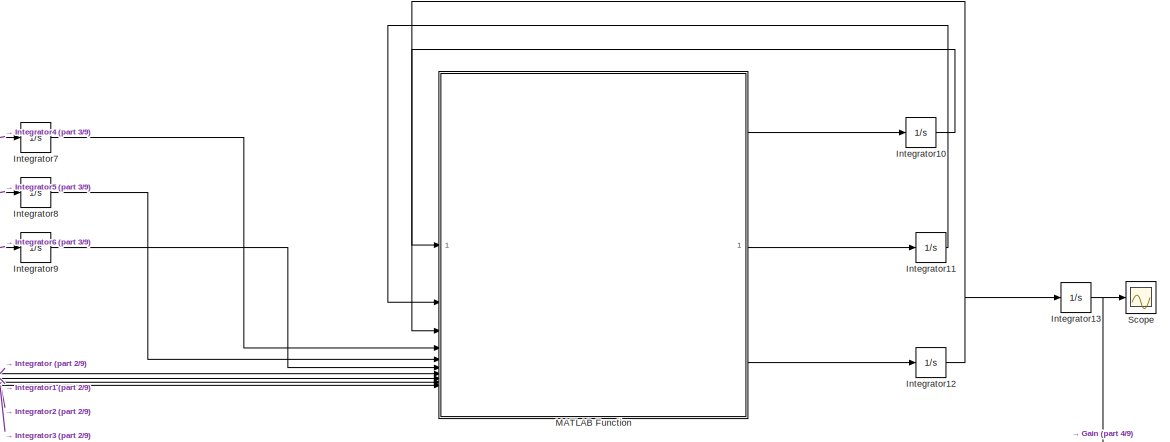
[diagram: root canvas - part 1/9, top right region]
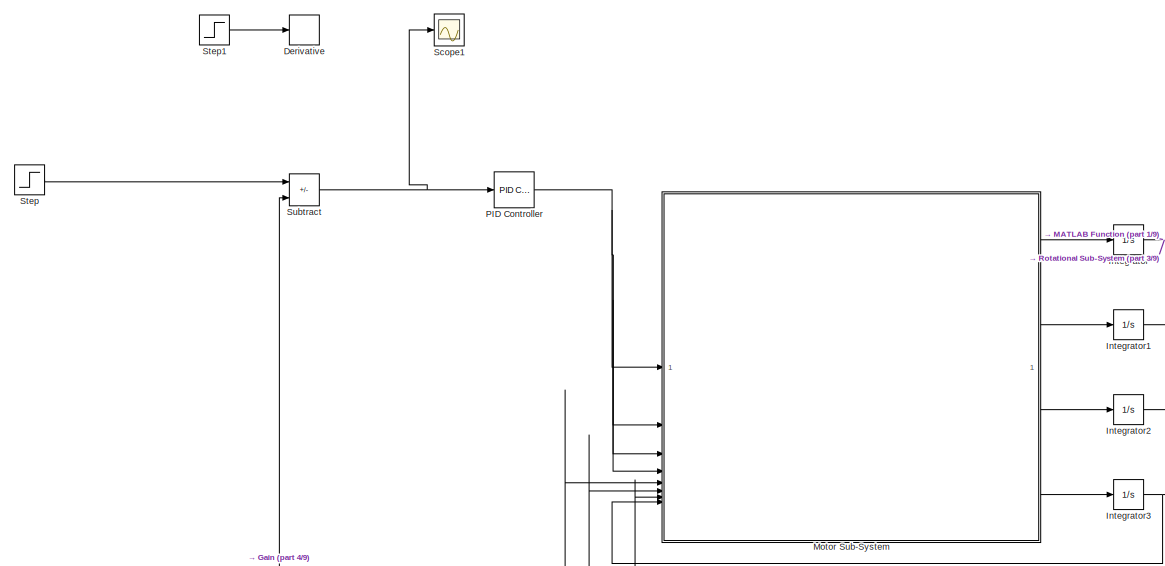
[diagram: root canvas - part 2/9, top left region]
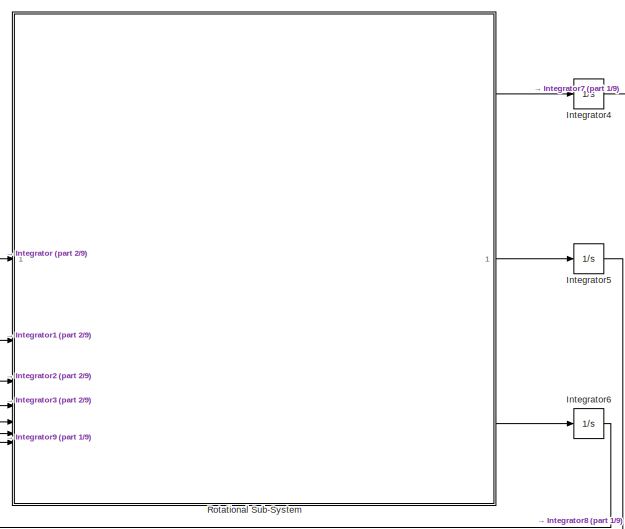
[diagram: root canvas - part 3/9, top center region]
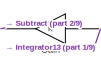
[diagram: root canvas - part 4/9, central region]
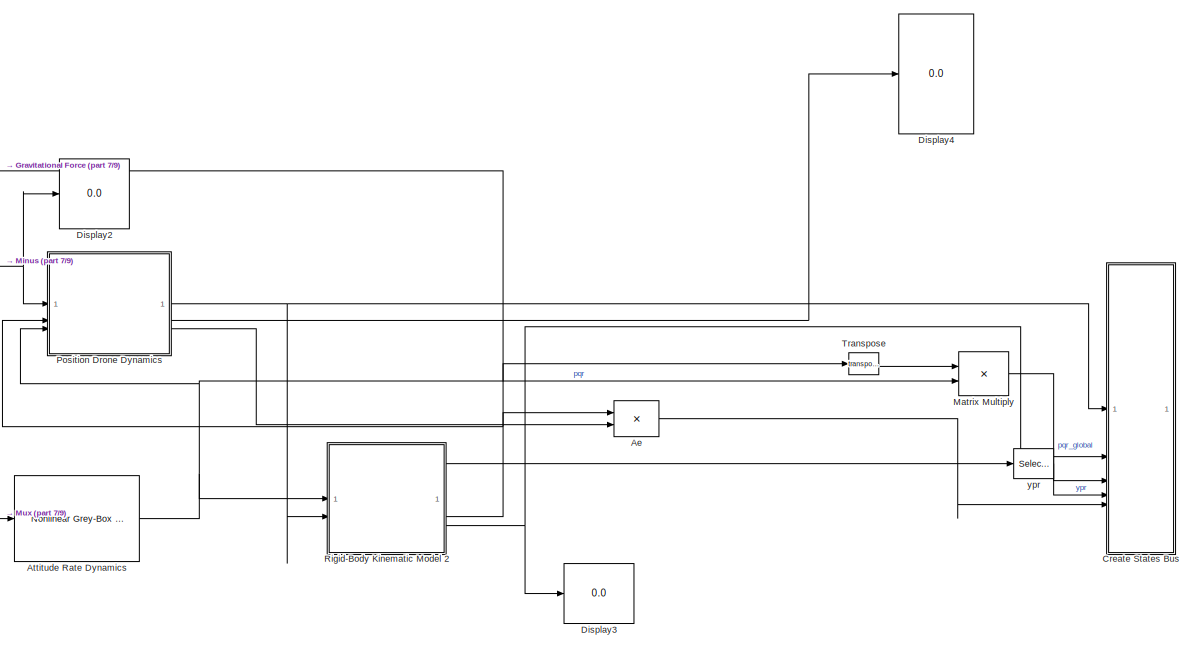
[diagram: root canvas - part 5/9, bottom right region]
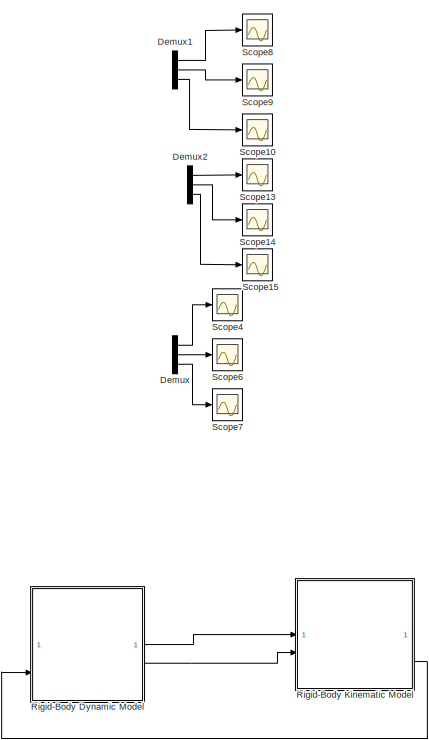
[diagram: root canvas - part 6/9, bottom right region]
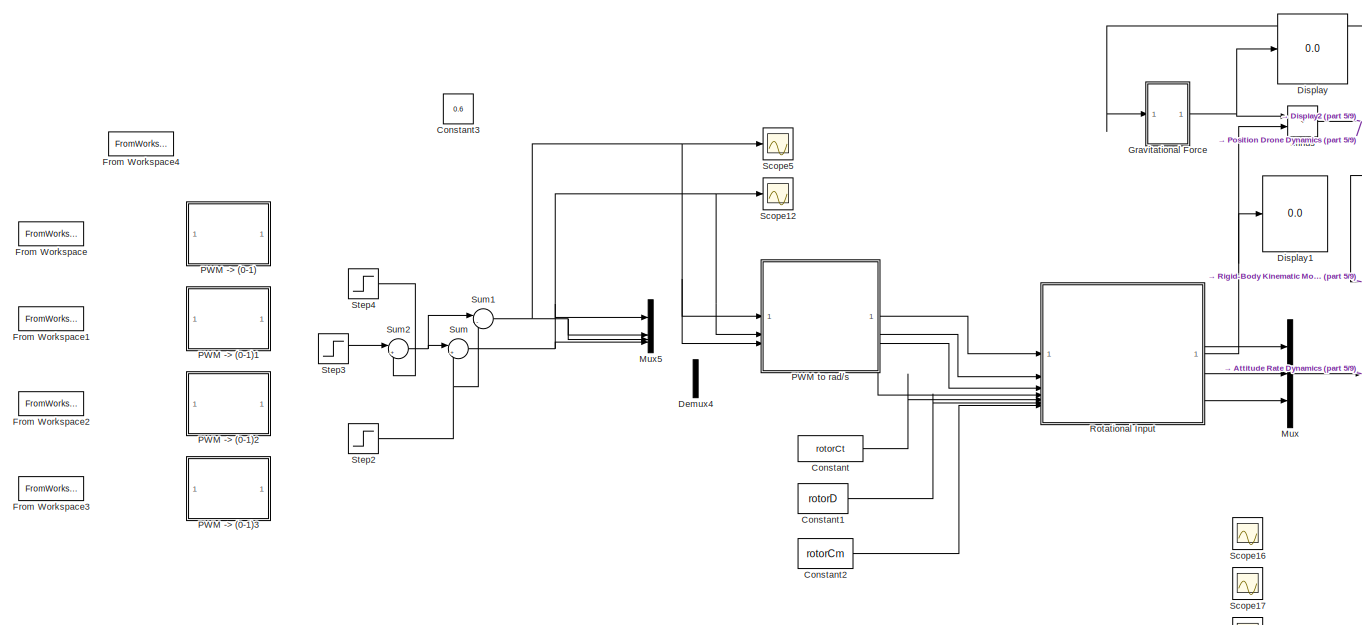
[diagram: root canvas - part 7/9, bottom left region]
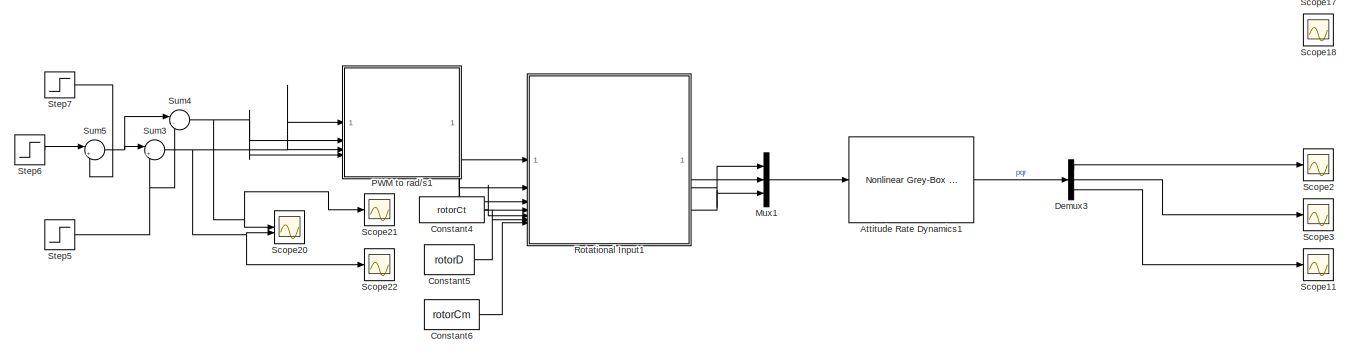
[diagram: root canvas - part 8/9, bottom left region]
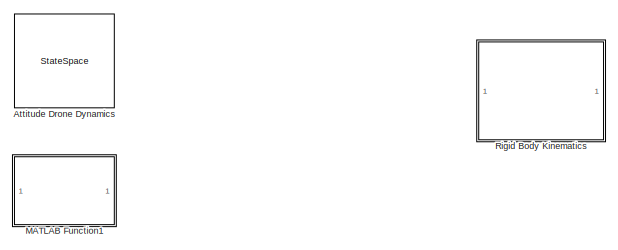
[diagram: root canvas - part 9/9, bottom right region]
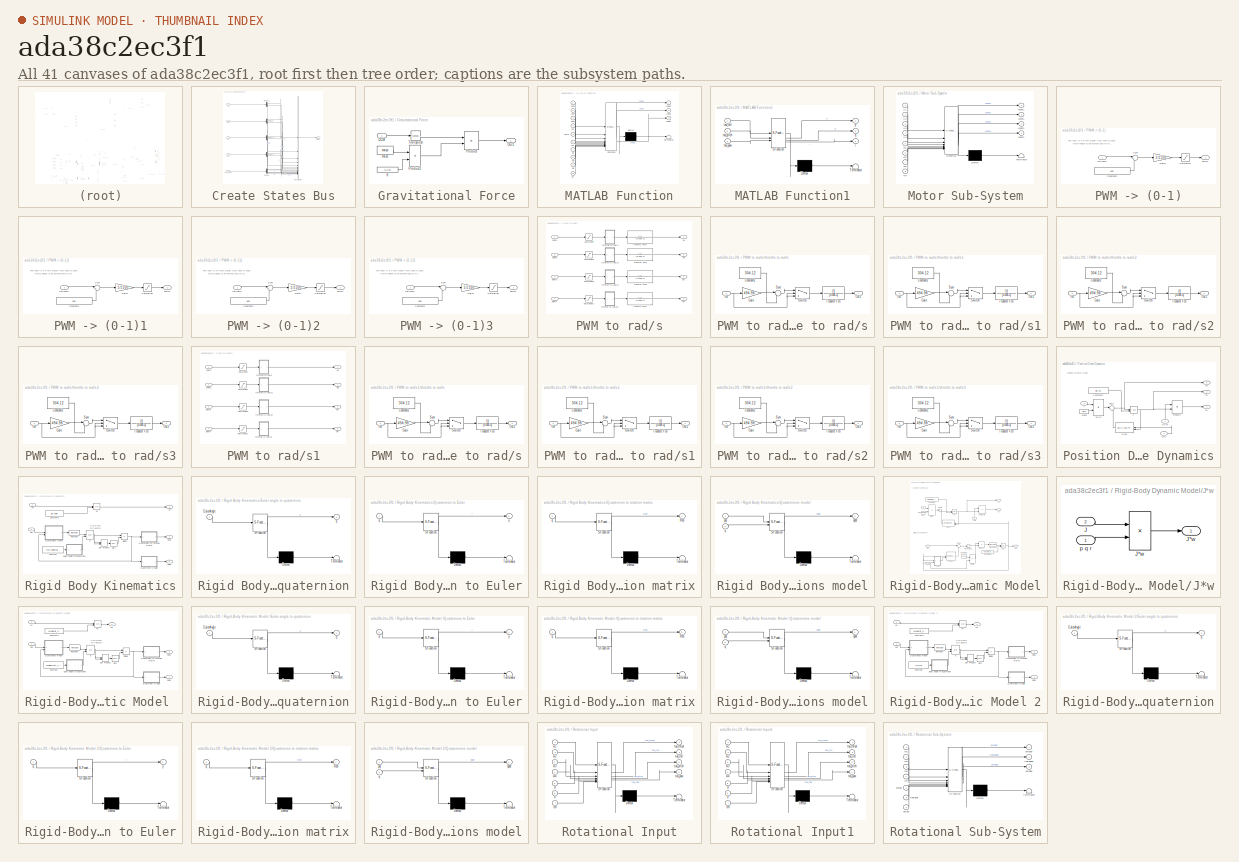
[diagram: thumbnail index - all 41 canvases of the model, root first then tree order]
MODEL slx_ada38c2ec3f1
KIND model
CONFIG AbsTol = auto
CONFIG EnableMultiTasking = off
CONFIG FixedStep = auto
CONFIG MaxStep = auto
CONFIG MinStep = auto
CONFIG RelTol = 1e-3
CONFIG SampleTimeConstraint = Unconstrained
CONFIG SolverName = VariableStepAuto
CONFIG StartTime = 0.0
CONFIG StopTime = 40
BLOCK [Product] Ae
  Commented = on
  Multiplication = Matrix(*)
BLOCK [StateSpace] Attitude Drone Dynamics
  A = ss_est_new.A
  B = ss_est_new.B
  C = ss_est_new.C
  Commented = on
  D = ss_est_new.D
  InitialCondition = 0
BLOCK [Reference] Attitude Rate Dynamics  REF=slident/Models/Nonlinear Grey-Box Model  (lib defined in mdl_f7d4911ca73a)
  Commented = on
  SourceBlock = slident/Models/Nonlinear Grey-Box Model
  SourceType = Nonlinear Grey-Box Model
BLOCK [Reference] Attitude Rate Dynamics1  REF=slident/Models/Nonlinear Grey-Box Model  (lib defined in mdl_f7d4911ca73a)
  SourceBlock = slident/Models/Nonlinear Grey-Box Model
  SourceType = Nonlinear Grey-Box Model
BLOCK [Constant] Constant
  Commented = on
  Value = rotorCt
BLOCK [Constant] Constant1
  Commented = on
  Value = rotorD
BLOCK [Constant] Constant2
  Commented = on
  Value = rotorCm
BLOCK [Constant] Constant3
  Value = 0.6
BLOCK [Constant] Constant4
  Value = rotorCt
BLOCK [Constant] Constant5
  Value = rotorD
BLOCK [Constant] Constant6
  Value = rotorCm
BLOCK [SubSystem] Create States Bus
BLOCK [BusCreator] Create States Bus/Bus Creator
  DisplayOption = bar
  InheritFromInputs = on
  Inputs = X,Y,Z,yaw,pitch,roll,dx,dy,dz,p,q,r,ddx,ddy,ddz
BLOCK [Demux] Create States Bus/Demux
  Outputs = 3
BLOCK [Demux] Create States Bus/Demux1
  Outputs = 3
BLOCK [Demux] Create States Bus/Demux2
  Outputs = 3
BLOCK [Demux] Create States Bus/Demux3
  Outputs = 3
BLOCK [Demux] Create States Bus/Demux4
  Outputs = 3
BLOCK [Outport] Create States Bus/States
BLOCK [Inport] Create States Bus/Ve
BLOCK [Inport] Create States Bus/Xe
  Port = 2
BLOCK [Inport] Create States Bus/acc_lnav
  Port = 5
BLOCK [Inport] Create States Bus/pqr
  Port = 3
BLOCK [Inport] Create States Bus/ypr
  Port = 4
BLOCK [Demux] Demux
  Outputs = 3
BLOCK [Demux] Demux1
  Outputs = 3
BLOCK [Demux] Demux2
  Outputs = 3
BLOCK [Demux] Demux3
  Outputs = 3
BLOCK [Demux] Demux4
BLOCK [Derivative] Derivative
  Commented = on
BLOCK [Display] Display
  Commented = on
  Decimation = 1
BLOCK [Display] Display1
  Commented = on
  Decimation = 1
BLOCK [Display] Display2
  Commented = on
  Decimation = 1
BLOCK [Display] Display3
  Commented = on
  Decimation = 1
BLOCK [Display] Display4
  Commented = on
  Decimation = 1
BLOCK [FromWorkspace] From Workspace
  Commented = on
  SampleTime = 0.25
  VariableName = Motor1
BLOCK [FromWorkspace] From Workspace1
  Commented = on
  SampleTime = 0.25
  VariableName = Motor2
BLOCK [FromWorkspace] From Workspace2
  Commented = on
  SampleTime = 0.25
  VariableName = Motor3
BLOCK [FromWorkspace] From Workspace3
  Commented = on
  SampleTime = 0.25
  VariableName = Motor4
BLOCK [FromWorkspace] From Workspace4
  Commented = on
  SampleTime = 0.25
  VariableName = motorStep
BLOCK [Gain] Gain
  Commented = on
  NameLocation = top
BLOCK [SubSystem] Gravitational Force
  Commented = on
BLOCK [Inport] Gravitational Force/DCM
BLOCK [Outport] Gravitational Force/Out1
BLOCK [Product] Gravitational Force/Product
  Multiplication = Matrix(*)
  NameLocation = top
BLOCK [Product] Gravitational Force/Product1
  NameLocation = top
BLOCK [Math] Gravitational Force/Transpose
  Operator = transpose
  SignedPower = on
BLOCK [Constant] Gravitational Force/g
  Value = [0,0,g]
BLOCK [Constant] Gravitational Force/mass
  Value = mass
BLOCK [Integrator] Integrator
  Commented = on
BLOCK [Integrator] Integrator1
  Commented = on
BLOCK [Integrator] Integrator10
  Commented = on
BLOCK [Integrator] Integrator11
  Commented = on
BLOCK [Integrator] Integrator12
  Commented = on
BLOCK [Integrator] Integrator13
  Commented = on
BLOCK [Integrator] Integrator2
  Commented = on
BLOCK [Integrator] Integrator3
  Commented = on
BLOCK [Integrator] Integrator4
  Commented = on
BLOCK [Integrator] Integrator5
  Commented = on
BLOCK [Integrator] Integrator6
  Commented = on
BLOCK [Integrator] Integrator7
  Commented = on
BLOCK [Integrator] Integrator8
  Commented = on
BLOCK [Integrator] Integrator9
  Commented = on
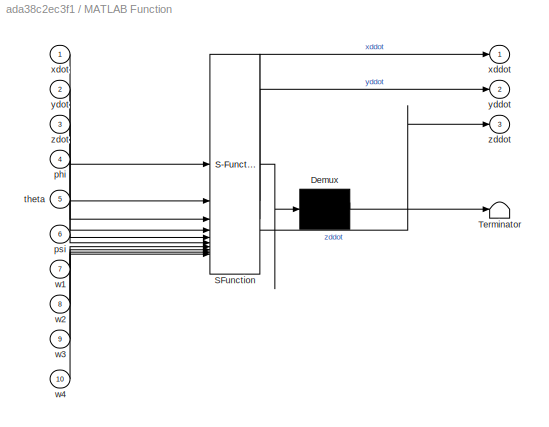
BLOCK [SubSystem] MATLAB Function
  Commented = on
  ErrorFcn = Stateflow.Translate.translate
  LibrarySourceBlock = simulink/User-Defined\nFunctions/MATLAB Function
  PermitHierarchicalResolution = ExplicitOnly
  SFBlockType = MATLAB Function
  TreatAsAtomicUnit = on
BLOCK [Demux] MATLAB Function/ Demux 
  Outputs = 1
BLOCK [S-Function] MATLAB Function/ SFunction 
  EnableBusSupport = on
  FunctionName = sf_sfun
  PortCounts = [10 4]
  SFcnIsStateOwnerBlock = off
  SFunctionDeploymentMode = off
  Tag = Stateflow S-Function 3
BLOCK [Terminator] MATLAB Function/ Terminator 
BLOCK [Inport] MATLAB Function/phi
  Port = 4
BLOCK [Inport] MATLAB Function/psi
  Port = 6
BLOCK [Inport] MATLAB Function/theta
  Port = 5
BLOCK [Inport] MATLAB Function/w1
  Port = 7
BLOCK [Inport] MATLAB Function/w2
  Port = 8
BLOCK [Inport] MATLAB Function/w3
  Port = 9
BLOCK [Inport] MATLAB Function/w4
  Port = 10
BLOCK [Outport] MATLAB Function/xddot
BLOCK [Inport] MATLAB Function/xdot
BLOCK [Outport] MATLAB Function/yddot
  Port = 2
BLOCK [Inport] MATLAB Function/ydot
  Port = 2
BLOCK [Outport] MATLAB Function/zddot
  Port = 3
BLOCK [Inport] MATLAB Function/zdot
  Port = 3
BLOCK [SubSystem] MATLAB Function1
  Commented = on
  ErrorFcn = Stateflow.Translate.translate
  LibrarySourceBlock = simulink/User-Defined\nFunctions/MATLAB Function
  PermitHierarchicalResolution = ExplicitOnly
  SFBlockType = MATLAB Function
  TreatAsAtomicUnit = on
BLOCK [Demux] MATLAB Function1/ Demux 
  Outputs = 1
BLOCK [S-Function] MATLAB Function1/ SFunction 
  EnableBusSupport = on
  FunctionName = sf_sfun
  PortCounts = [3 4]
  SFcnIsStateOwnerBlock = off
  SFunctionDeploymentMode = off
  Tag = Stateflow S-Function 5
BLOCK [Terminator] MATLAB Function1/ Terminator 
BLOCK [Outport] MATLAB Function1/p
BLOCK [Outport] MATLAB Function1/q
  Port = 2
BLOCK [Outport] MATLAB Function1/r
  Port = 3
BLOCK [Inport] MATLAB Function1/tau_pitch
  Port = 2
BLOCK [Inport] MATLAB Function1/tau_roll
BLOCK [Inport] MATLAB Function1/tau_yaw
  Port = 3
BLOCK [Product] Matrix Multiply
  Commented = on
  Multiplication = Matrix(*)
BLOCK [Sum] Minus
  Commented = on
  IconShape = rectangular
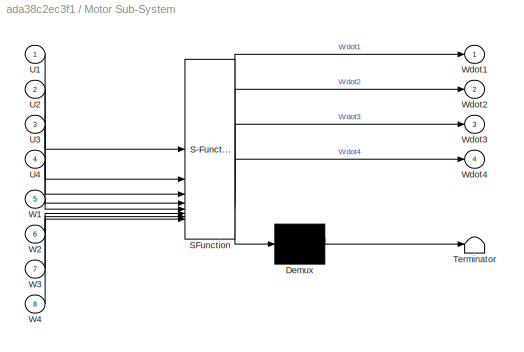
BLOCK [SubSystem] Motor Sub-System
  Commented = on
  ErrorFcn = Stateflow.Translate.translate
  LibrarySourceBlock = simulink/User-Defined\nFunctions/MATLAB Function
  PermitHierarchicalResolution = ExplicitOnly
  SFBlockType = MATLAB Function
  TreatAsAtomicUnit = on
BLOCK [Demux] Motor Sub-System/ Demux 
  Outputs = 1
BLOCK [S-Function] Motor Sub-System/ SFunction 
  EnableBusSupport = on
  FunctionName = sf_sfun
  PortCounts = [8 5]
  SFcnIsStateOwnerBlock = off
  SFunctionDeploymentMode = off
  Tag = Stateflow S-Function 2
BLOCK [Terminator] Motor Sub-System/ Terminator 
BLOCK [Inport] Motor Sub-System/U1
BLOCK [Inport] Motor Sub-System/U2
  Port = 2
BLOCK [Inport] Motor Sub-System/U3
  Port = 3
BLOCK [Inport] Motor Sub-System/U4
  Port = 4
BLOCK [Inport] Motor Sub-System/W1
  Port = 5
BLOCK [Inport] Motor Sub-System/W2
  Port = 6
BLOCK [Inport] Motor Sub-System/W3
  Port = 7
BLOCK [Inport] Motor Sub-System/W4
  Port = 8
BLOCK [Outport] Motor Sub-System/Wdot1
BLOCK [Outport] Motor Sub-System/Wdot2
  Port = 2
BLOCK [Outport] Motor Sub-System/Wdot3
  Port = 3
BLOCK [Outport] Motor Sub-System/Wdot4
  Port = 4
BLOCK [Mux] Mux
  Commented = on
  DisplayOption = bar
  Inputs = 3
BLOCK [Mux] Mux1
  DisplayOption = bar
  Inputs = 3
BLOCK [Mux] Mux5
  DisplayOption = bar
BLOCK [Reference] PID Controller  REF=slpidlib/PID Controller
  Commented = on
  LibrarySourceBlock = simulink/Continuous/PID Controller
  SourceBlock = slpidlib/PID Controller
  SourceType = PID 1dof
BLOCK [SubSystem] PWM -> (0-1)
  Commented = on
BLOCK [Constant] PWM -> (0-1)/Constant2
  Value = 900
BLOCK [Gain] PWM -> (0-1)/Gain1
  Gain = 1/1100
BLOCK [Saturate] PWM -> (0-1)/Saturation
  LowerLimit = 0
  UpperLimit = 1
BLOCK [Sum] PWM -> (0-1)/Sum
  Inputs = |+-
BLOCK [Inport] PWM -> (0-1)/inPWMs
BLOCK [Outport] PWM -> (0-1)/pwm1
BLOCK [SubSystem] PWM -> (0-1)1
  Commented = on
BLOCK [Constant] PWM -> (0-1)1/Constant2
  Value = 900
BLOCK [Gain] PWM -> (0-1)1/Gain1
  Gain = 1/1100
BLOCK [Saturate] PWM -> (0-1)1/Saturation
  LowerLimit = 0
  UpperLimit = 1
BLOCK [Sum] PWM -> (0-1)1/Sum
  Inputs = |+-
BLOCK [Inport] PWM -> (0-1)1/inPWMs
BLOCK [Outport] PWM -> (0-1)1/pwm1
BLOCK [SubSystem] PWM -> (0-1)2
  Commented = on
BLOCK [Constant] PWM -> (0-1)2/Constant2
  Value = 900
BLOCK [Gain] PWM -> (0-1)2/Gain1
  Gain = 1/1100
BLOCK [Saturate] PWM -> (0-1)2/Saturation
  LowerLimit = 0
  UpperLimit = 1
BLOCK [Sum] PWM -> (0-1)2/Sum
  Inputs = |+-
BLOCK [Inport] PWM -> (0-1)2/inPWMs
BLOCK [Outport] PWM -> (0-1)2/pwm1
BLOCK [SubSystem] PWM -> (0-1)3
  Commented = on
BLOCK [Constant] PWM -> (0-1)3/Constant2
  Value = 900
BLOCK [Gain] PWM -> (0-1)3/Gain1
  Gain = 1/1100
BLOCK [Saturate] PWM -> (0-1)3/Saturation
  LowerLimit = 0
  UpperLimit = 1
BLOCK [Sum] PWM -> (0-1)3/Sum
  Inputs = |+-
BLOCK [Inport] PWM -> (0-1)3/inPWMs
BLOCK [Outport] PWM -> (0-1)3/pwm1
BLOCK [SubSystem] PWM to rad//s
  Commented = on
BLOCK [Saturate] PWM to rad//s/Saturation
  LowerLimit = 0
  UpperLimit = 1
BLOCK [Saturate] PWM to rad//s/Saturation1
  LowerLimit = 0
  UpperLimit = 1
BLOCK [Saturate] PWM to rad//s/Saturation2
  LowerLimit = 0
  UpperLimit = 1
BLOCK [Saturate] PWM to rad//s/Saturation3
  LowerLimit = 0
  UpperLimit = 1
BLOCK [TransferFcn] PWM to rad//s/Transfer Fcn1
  Denominator = [0.005 1]
  Numerator = 1.3
BLOCK [TransferFcn] PWM to rad//s/Transfer Fcn2
  Denominator = [0.005 1]
  Numerator = 1.3
BLOCK [TransferFcn] PWM to rad//s/Transfer Fcn3
  Denominator = [0.005 1]
  Numerator = 1.3
BLOCK [TransferFcn] PWM to rad//s/Transfer Fcn4
  Denominator = [0.005 1]
  Numerator = 1.3
BLOCK [Inport] PWM to rad//s/pwm1
BLOCK [Inport] PWM to rad//s/pwm2
  Port = 2
BLOCK [Inport] PWM to rad//s/pwm3
  Port = 3
BLOCK [Inport] PWM to rad//s/pwm4
  Port = 4
BLOCK [SubSystem] PWM to rad//s/throttle to rad//s
BLOCK [Constant] PWM to rad//s/throttle to rad//s/Constant2
  Value = 304.12
BLOCK [Gain] PWM to rad//s/throttle to rad//s/Gain
  Gain = 494.98
BLOCK [Inport] PWM to rad//s/throttle to rad//s/In2
BLOCK [Outport] PWM to rad//s/throttle to rad//s/Out1
BLOCK [Sum] PWM to rad//s/throttle to rad//s/Sum
  Inputs = |++
BLOCK [Switch] PWM to rad//s/throttle to rad//s/Switch
  Criteria = u2 > Threshold
  InputSameDT = off
  SaturateOnIntegerOverflow = off
BLOCK [TransferFcn] PWM to rad//s/throttle to rad//s/Transfer Fcn
  Denominator = [0.005 1]
BLOCK [SubSystem] PWM to rad//s/throttle to rad//s1
BLOCK [Constant] PWM to rad//s/throttle to rad//s1/Constant2
  Value = 304.12
BLOCK [Gain] PWM to rad//s/throttle to rad//s1/Gain
  Gain = 494.98
BLOCK [Inport] PWM to rad//s/throttle to rad//s1/In2
BLOCK [Outport] PWM to rad//s/throttle to rad//s1/Out1
BLOCK [Sum] PWM to rad//s/throttle to rad//s1/Sum
  Inputs = |++
BLOCK [Switch] PWM to rad//s/throttle to rad//s1/Switch
  Criteria = u2 > Threshold
  InputSameDT = off
  SaturateOnIntegerOverflow = off
BLOCK [TransferFcn] PWM to rad//s/throttle to rad//s1/Transfer Fcn
  Denominator = [0.005 1]
BLOCK [SubSystem] PWM to rad//s/throttle to rad//s2
BLOCK [Constant] PWM to rad//s/throttle to rad//s2/Constant2
  Value = 304.12
BLOCK [Gain] PWM to rad//s/throttle to rad//s2/Gain
  Gain = 494.98
BLOCK [Inport] PWM to rad//s/throttle to rad//s2/In2
BLOCK [Outport] PWM to rad//s/throttle to rad//s2/Out1
BLOCK [Sum] PWM to rad//s/throttle to rad//s2/Sum
  Inputs = |++
BLOCK [Switch] PWM to rad//s/throttle to rad//s2/Switch
  Criteria = u2 > Threshold
  InputSameDT = off
  SaturateOnIntegerOverflow = off
BLOCK [TransferFcn] PWM to rad//s/throttle to rad//s2/Transfer Fcn
  Denominator = [0.005 1]
BLOCK [SubSystem] PWM to rad//s/throttle to rad//s3
BLOCK [Constant] PWM to rad//s/throttle to rad//s3/Constant2
  Value = 304.12
BLOCK [Gain] PWM to rad//s/throttle to rad//s3/Gain
  Gain = 494.98
BLOCK [Inport] PWM to rad//s/throttle to rad//s3/In2
BLOCK [Outport] PWM to rad//s/throttle to rad//s3/Out1
BLOCK [Sum] PWM to rad//s/throttle to rad//s3/Sum
  Inputs = |++
BLOCK [Switch] PWM to rad//s/throttle to rad//s3/Switch
  Criteria = u2 > Threshold
  InputSameDT = off
  SaturateOnIntegerOverflow = off
BLOCK [TransferFcn] PWM to rad//s/throttle to rad//s3/Transfer Fcn
  Denominator = [0.005 1]
BLOCK [Outport] PWM to rad//s/w1
BLOCK [Outport] PWM to rad//s/w2
  Port = 2
BLOCK [Outport] PWM to rad//s/w3
  Port = 3
BLOCK [Outport] PWM to rad//s/w4
  Port = 4
BLOCK [SubSystem] PWM to rad//s1
BLOCK [Saturate] PWM to rad//s1/Saturation
  LowerLimit = 0
  UpperLimit = 1
BLOCK [Saturate] PWM to rad//s1/Saturation1
  LowerLimit = 0
  UpperLimit = 1
BLOCK [Saturate] PWM to rad//s1/Saturation2
  LowerLimit = 0
  UpperLimit = 1
BLOCK [Saturate] PWM to rad//s1/Saturation3
  LowerLimit = 0
  UpperLimit = 1
BLOCK [Inport] PWM to rad//s1/pwm1
BLOCK [Inport] PWM to rad//s1/pwm2
  Port = 2
BLOCK [Inport] PWM to rad//s1/pwm3
  Port = 3
BLOCK [Inport] PWM to rad//s1/pwm4
  Port = 4
BLOCK [SubSystem] PWM to rad//s1/throttle to rad//s
BLOCK [Constant] PWM to rad//s1/throttle to rad//s/Constant2
  Value = 304.12
BLOCK [Gain] PWM to rad//s1/throttle to rad//s/Gain
  Gain = 494.98
BLOCK [Inport] PWM to rad//s1/throttle to rad//s/In2
BLOCK [Outport] PWM to rad//s1/throttle to rad//s/Out1
BLOCK [Sum] PWM to rad//s1/throttle to rad//s/Sum
  Inputs = |++
BLOCK [Switch] PWM to rad//s1/throttle to rad//s/Switch
  Criteria = u2 > Threshold
  InputSameDT = off
  SaturateOnIntegerOverflow = off
BLOCK [TransferFcn] PWM to rad//s1/throttle to rad//s/Transfer Fcn
  Denominator = [0.005 1]
BLOCK [SubSystem] PWM to rad//s1/throttle to rad//s1
BLOCK [Constant] PWM to rad//s1/throttle to rad//s1/Constant2
  Value = 304.12
BLOCK [Gain] PWM to rad//s1/throttle to rad//s1/Gain
  Gain = 494.98
BLOCK [Inport] PWM to rad//s1/throttle to rad//s1/In2
BLOCK [Outport] PWM to rad//s1/throttle to rad//s1/Out1
BLOCK [Sum] PWM to rad//s1/throttle to rad//s1/Sum
  Inputs = |++
BLOCK [Switch] PWM to rad//s1/throttle to rad//s1/Switch
  Criteria = u2 > Threshold
  InputSameDT = off
  SaturateOnIntegerOverflow = off
BLOCK [TransferFcn] PWM to rad//s1/throttle to rad//s1/Transfer Fcn
  Denominator = [0.005 1]
BLOCK [SubSystem] PWM to rad//s1/throttle to rad//s2
BLOCK [Constant] PWM to rad//s1/throttle to rad//s2/Constant2
  Value = 304.12
BLOCK [Gain] PWM to rad//s1/throttle to rad//s2/Gain
  Gain = 494.98
BLOCK [Inport] PWM to rad//s1/throttle to rad//s2/In2
BLOCK [Outport] PWM to rad//s1/throttle to rad//s2/Out1
BLOCK [Sum] PWM to rad//s1/throttle to rad//s2/Sum
  Inputs = |++
BLOCK [Switch] PWM to rad//s1/throttle to rad//s2/Switch
  Criteria = u2 > Threshold
  InputSameDT = off
  SaturateOnIntegerOverflow = off
BLOCK [TransferFcn] PWM to rad//s1/throttle to rad//s2/Transfer Fcn
  Denominator = [0.005 1]
BLOCK [SubSystem] PWM to rad//s1/throttle to rad//s3
BLOCK [Constant] PWM to rad//s1/throttle to rad//s3/Constant2
  Value = 304.12
BLOCK [Gain] PWM to rad//s1/throttle to rad//s3/Gain
  Gain = 494.98
BLOCK [Inport] PWM to rad//s1/throttle to rad//s3/In2
BLOCK [Outport] PWM to rad//s1/throttle to rad//s3/Out1
BLOCK [Sum] PWM to rad//s1/throttle to rad//s3/Sum
  Inputs = |++
BLOCK [Switch] PWM to rad//s1/throttle to rad//s3/Switch
  Criteria = u2 > Threshold
  InputSameDT = off
  SaturateOnIntegerOverflow = off
BLOCK [TransferFcn] PWM to rad//s1/throttle to rad//s3/Transfer Fcn
  Denominator = [0.005 1]
BLOCK [Outport] PWM to rad//s1/w1
BLOCK [Outport] PWM to rad//s1/w2
  Port = 2
BLOCK [Outport] PWM to rad//s1/w3
  Port = 3
BLOCK [Outport] PWM to rad//s1/w4
  Port = 4
BLOCK [SubSystem] Position Drone Dynamics
  Commented = on
BLOCK [Constant] Position Drone Dynamics/ Mass 
  Value = mass
BLOCK [Outport] Position Drone Dynamics/Ab
  Port = 3
BLOCK [Constant] Position Drone Dynamics/Constant2
  Value = init.vb
BLOCK [Inport] Position Drone Dynamics/DCM
  NameLocation = right
  Port = 2
BLOCK [Product] Position Drone Dynamics/Product1
  Multiplication = Matrix(*)
BLOCK [Sum] Position Drone Dynamics/Sum1
  Inputs = |+-
BLOCK [Product] Position Drone Dynamics/a=f//m
  Inputs = */
BLOCK [Inport] Position Drone Dynamics/f
BLOCK [Inport] Position Drone Dynamics/p,q,r
  Port = 3
BLOCK [Integrator] Position Drone Dynamics/v
  InitialConditionSource = external
BLOCK [Outport] Position Drone Dynamics/vb
  Port = 2
  VectorParamsAs1DForOutWhenUnconnected = off
BLOCK [Outport] Position Drone Dynamics/ve
  VectorParamsAs1DForOutWhenUnconnected = off
BLOCK [Reference] Position Drone Dynamics/wxVb  REF=sharedutil/3x3 Cross Product
  SourceBlock = sharedutil/3x3 Cross Product
  SourceType = CrossProduct
BLOCK [SubSystem] Rigid Body Kinematics
  Commented = on
BLOCK [Constant] Rigid Body Kinematics/Constant
  Value = init.angRates
BLOCK [Constant] Rigid Body Kinematics/Constant1
  Value = init.euler
BLOCK [Outport] Rigid Body Kinematics/DCM
  Port = 2
  VectorParamsAs1DForOutWhenUnconnected = off
BLOCK [Product] Rigid Body Kinematics/Divide
  Inputs = */
BLOCK [DotProduct] Rigid Body Kinematics/Dot Product
  OutDataTypeStr = Inherit: Inherit via internal rule
BLOCK [Outport] Rigid Body Kinematics/Euler
  VectorParamsAs1DForOutWhenUnconnected = off
BLOCK [SubSystem] Rigid Body Kinematics/Euler angle to quaternion
  ErrorFcn = Stateflow.Translate.translate
  PermitHierarchicalResolution = ExplicitOnly
  SFBlockType = MATLAB Function
BLOCK [Demux] Rigid Body Kinematics/Euler angle to quaternion/ Demux 
  Outputs = 1
BLOCK [S-Function] Rigid Body Kinematics/Euler angle to quaternion/ SFunction 
  EnableBusSupport = on
  FunctionName = sf_sfun
  PortCounts = [1 2]
  SFcnIsStateOwnerBlock = off
  SFunctionDeploymentMode = off
  Tag = Stateflow S-Function 7
BLOCK [Terminator] Rigid Body Kinematics/Euler angle to quaternion/ Terminator 
BLOCK [Inport] Rigid Body Kinematics/Euler angle to quaternion/EulerAngle
BLOCK [Outport] Rigid Body Kinematics/Euler angle to quaternion/q
  VectorParamsAs1DForOutWhenUnconnected = off
BLOCK [SubSystem] Rigid Body Kinematics/Quaternion to Euler
  ErrorFcn = Stateflow.Translate.translate
  PermitHierarchicalResolution = ExplicitOnly
  SFBlockType = MATLAB Function
BLOCK [Demux] Rigid Body Kinematics/Quaternion to Euler/ Demux 
  Outputs = 1
BLOCK [S-Function] Rigid Body Kinematics/Quaternion to Euler/ SFunction 
  EnableBusSupport = on
  FunctionName = sf_sfun
  PortCounts = [1 2]
  SFcnIsStateOwnerBlock = off
  SFunctionDeploymentMode = off
  Tag = Stateflow S-Function 12
BLOCK [Terminator] Rigid Body Kinematics/Quaternion to Euler/ Terminator 
BLOCK [Inport] Rigid Body Kinematics/Quaternion to Euler/q
BLOCK [Outport] Rigid Body Kinematics/Quaternion to Euler/y
  VectorParamsAs1DForOutWhenUnconnected = off
BLOCK [SubSystem] Rigid Body Kinematics/Quaternion to rotation matrix
  ErrorFcn = Stateflow.Translate.translate
  PermitHierarchicalResolution = ExplicitOnly
  SFBlockType = MATLAB Function
BLOCK [Demux] Rigid Body Kinematics/Quaternion to rotation matrix/ Demux 
  Outputs = 1
BLOCK [S-Function] Rigid Body Kinematics/Quaternion to rotation matrix/ SFunction 
  EnableBusSupport = on
  FunctionName = sf_sfun
  PortCounts = [1 2]
  SFcnIsStateOwnerBlock = off
  SFunctionDeploymentMode = off
  Tag = Stateflow S-Function 13
BLOCK [Terminator] Rigid Body Kinematics/Quaternion to rotation matrix/ Terminator 
BLOCK [Outport] Rigid Body Kinematics/Quaternion to rotation matrix/Reb
  VectorParamsAs1DForOutWhenUnconnected = off
BLOCK [Inport] Rigid Body Kinematics/Quaternion to rotation matrix/q
BLOCK [SubSystem] Rigid Body Kinematics/Quaternions model
  ErrorFcn = Stateflow.Translate.translate
  PermitHierarchicalResolution = ExplicitOnly
  SFBlockType = MATLAB Function
  TreatAsAtomicUnit = on
BLOCK [Demux] Rigid Body Kinematics/Quaternions model/ Demux 
  Outputs = 1
BLOCK [S-Function] Rigid Body Kinematics/Quaternions model/ SFunction 
  EnableBusSupport = on
  FunctionName = sf_sfun
  PortCounts = [2 2]
  SFcnIsStateOwnerBlock = off
  SFunctionDeploymentMode = off
  Tag = Stateflow S-Function 14
BLOCK [Terminator] Rigid Body Kinematics/Quaternions model/ Terminator 
BLOCK [Inport] Rigid Body Kinematics/Quaternions model/pqr
BLOCK [Inport] Rigid Body Kinematics/Quaternions model/q
  Port = 2
BLOCK [Outport] Rigid Body Kinematics/Quaternions model/qdot
  VectorParamsAs1DForOutWhenUnconnected = off
BLOCK [Reshape] Rigid Body Kinematics/Reshape
  OutputDimensionality = Customize
  OutputDimensions = [4,1]
BLOCK [Sqrt] Rigid Body Kinematics/Sqrt
BLOCK [Inport] Rigid Body Kinematics/pqr
BLOCK [Integrator] Rigid Body Kinematics/q
  InitialConditionSource = external
BLOCK [Inport] Rigid Body Kinematics/ve
  Port = 2
BLOCK [Integrator] Rigid Body Kinematics/xe
  InitialConditionSource = external
BLOCK [Outport] Rigid Body Kinematics/xe 
  Port = 3
  VectorParamsAs1DForOutWhenUnconnected = off
BLOCK [SubSystem] Rigid-Body Dynamic Model
  Commented = on
BLOCK [Constant] Rigid-Body Dynamic Model/ Mass 
  Value = ModelParam_uavMass
BLOCK [Constant] Rigid-Body Dynamic Model/Constant
  Value = eye(3)
BLOCK [Constant] Rigid-Body Dynamic Model/Constant1
  Value = ModelInit_RateB
BLOCK [Constant] Rigid-Body Dynamic Model/Constant2
  Value = ModelInit_VelB
BLOCK [Inport] Rigid-Body Dynamic Model/DCM
  NameLocation = right
  Port = 3
BLOCK [Product] Rigid-Body Dynamic Model/Divide
  Inputs = */
  Multiplication = Matrix(*)
BLOCK [Constant] Rigid-Body Dynamic Model/J 
  Value = ModelParam_uavJ
BLOCK [SubSystem] Rigid-Body Dynamic Model/J*w
BLOCK [Inport] Rigid-Body Dynamic Model/J*w/J
  Port = 2
BLOCK [Product] Rigid-Body Dynamic Model/J*w/J*w
  Multiplication = Matrix(*)
BLOCK [Outport] Rigid-Body Dynamic Model/J*w/J*w 
  VectorParamsAs1DForOutWhenUnconnected = off
BLOCK [Inport] Rigid-Body Dynamic Model/J*w/p q r
BLOCK [Inport] Rigid-Body Dynamic Model/Mb
BLOCK [Product] Rigid-Body Dynamic Model/Product
  Multiplication = Matrix(*)
BLOCK [Product] Rigid-Body Dynamic Model/Product1
  Multiplication = Matrix(*)
BLOCK [Reshape] Rigid-Body Dynamic Model/Reshape
  OutputDimensionality = Customize
  OutputDimensions = [3,1]
BLOCK [Reshape] Rigid-Body Dynamic Model/Reshape1
  OutputDimensionality = Column vector (2-D)
BLOCK [Sum] Rigid-Body Dynamic Model/Sum1
  Inputs = |+-
BLOCK [Sum] Rigid-Body Dynamic Model/Sum2
  Inputs = |+-
BLOCK [Product] Rigid-Body Dynamic Model/a=f//m
  Inputs = */
BLOCK [Inport] Rigid-Body Dynamic Model/f
  Port = 2
BLOCK [Integrator] Rigid-Body Dynamic Model/p,q,r
  InitialConditionSource = external
BLOCK [Outport] Rigid-Body Dynamic Model/p,q,r 
  VectorParamsAs1DForOutWhenUnconnected = off
BLOCK [Integrator] Rigid-Body Dynamic Model/vb
  InitialConditionSource = external
BLOCK [Outport] Rigid-Body Dynamic Model/vb 
  Port = 3
  VectorParamsAs1DForOutWhenUnconnected = off
BLOCK [Outport] Rigid-Body Dynamic Model/ve
  Port = 2
  VectorParamsAs1DForOutWhenUnconnected = off
BLOCK [Reference] Rigid-Body Dynamic Model/wx(Jw)  REF=sharedutil/3x3 Cross Product
  SourceBlock = sharedutil/3x3 Cross Product
  SourceType = CrossProduct
BLOCK [Reference] Rigid-Body Dynamic Model/wxVb  REF=sharedutil/3x3 Cross Product
  SourceBlock = sharedutil/3x3 Cross Product
  SourceType = CrossProduct
BLOCK [SubSystem] Rigid-Body Kinematic Model 
  Commented = on
BLOCK [Constant] Rigid-Body Kinematic Model /Constant
  Value = ModelInit_AngEuler
BLOCK [Constant] Rigid-Body Kinematic Model /Constant1
  Value = ModelInit_PosE
BLOCK [Outport] Rigid-Body Kinematic Model /DCM
  Port = 3
  VectorParamsAs1DForOutWhenUnconnected = off
BLOCK [Product] Rigid-Body Kinematic Model /Divide
  Inputs = */
BLOCK [DotProduct] Rigid-Body Kinematic Model /Dot Product
  OutDataTypeStr = Inherit: Inherit via internal rule
BLOCK [Outport] Rigid-Body Kinematic Model /Euler
  VectorParamsAs1DForOutWhenUnconnected = off
BLOCK [SubSystem] Rigid-Body Kinematic Model /Euler angle to quaternion
  ErrorFcn = Stateflow.Translate.translate
  PermitHierarchicalResolution = ExplicitOnly
  SFBlockType = MATLAB Function
BLOCK [Demux] Rigid-Body Kinematic Model /Euler angle to quaternion/ Demux 
  Outputs = 1
BLOCK [S-Function] Rigid-Body Kinematic Model /Euler angle to quaternion/ SFunction 
  EnableBusSupport = on
  FunctionName = sf_sfun
  PortCounts = [1 2]
  SFcnIsStateOwnerBlock = off
  SFunctionDeploymentMode = off
  Tag = Stateflow S-Function 11
BLOCK [Terminator] Rigid-Body Kinematic Model /Euler angle to quaternion/ Terminator 
BLOCK [Inport] Rigid-Body Kinematic Model /Euler angle to quaternion/EulerAngle
BLOCK [Outport] Rigid-Body Kinematic Model /Euler angle to quaternion/q
  VectorParamsAs1DForOutWhenUnconnected = off
BLOCK [SubSystem] Rigid-Body Kinematic Model /Quaternion to Euler
  ErrorFcn = Stateflow.Translate.translate
  PermitHierarchicalResolution = ExplicitOnly
  SFBlockType = MATLAB Function
BLOCK [Demux] Rigid-Body Kinematic Model /Quaternion to Euler/ Demux 
  Outputs = 1
BLOCK [S-Function] Rigid-Body Kinematic Model /Quaternion to Euler/ SFunction 
  EnableBusSupport = on
  FunctionName = sf_sfun
  PortCounts = [1 2]
  SFcnIsStateOwnerBlock = off
  SFunctionDeploymentMode = off
  Tag = Stateflow S-Function 9
BLOCK [Terminator] Rigid-Body Kinematic Model /Quaternion to Euler/ Terminator 
BLOCK [Inport] Rigid-Body Kinematic Model /Quaternion to Euler/q
BLOCK [Outport] Rigid-Body Kinematic Model /Quaternion to Euler/y
  VectorParamsAs1DForOutWhenUnconnected = off
BLOCK [SubSystem] Rigid-Body Kinematic Model /Quaternion to rotation matrix
  ErrorFcn = Stateflow.Translate.translate
  PermitHierarchicalResolution = ExplicitOnly
  SFBlockType = MATLAB Function
BLOCK [Demux] Rigid-Body Kinematic Model /Quaternion to rotation matrix/ Demux 
  Outputs = 1
BLOCK [S-Function] Rigid-Body Kinematic Model /Quaternion to rotation matrix/ SFunction 
  EnableBusSupport = on
  FunctionName = sf_sfun
  PortCounts = [1 2]
  SFcnIsStateOwnerBlock = off
  SFunctionDeploymentMode = off
  Tag = Stateflow S-Function 8
BLOCK [Terminator] Rigid-Body Kinematic Model /Quaternion to rotation matrix/ Terminator 
BLOCK [Outport] Rigid-Body Kinematic Model /Quaternion to rotation matrix/Reb
  VectorParamsAs1DForOutWhenUnconnected = off
BLOCK [Inport] Rigid-Body Kinematic Model /Quaternion to rotation matrix/q
BLOCK [SubSystem] Rigid-Body Kinematic Model /Quaternions model
  ErrorFcn = Stateflow.Translate.translate
  PermitHierarchicalResolution = ExplicitOnly
  SFBlockType = MATLAB Function
  TreatAsAtomicUnit = on
BLOCK [Demux] Rigid-Body Kinematic Model /Quaternions model/ Demux 
  Outputs = 1
BLOCK [S-Function] Rigid-Body Kinematic Model /Quaternions model/ SFunction 
  EnableBusSupport = on
  FunctionName = sf_sfun
  PortCounts = [2 2]
  SFcnIsStateOwnerBlock = off
  SFunctionDeploymentMode = off
  Tag = Stateflow S-Function 10
BLOCK [Terminator] Rigid-Body Kinematic Model /Quaternions model/ Terminator 
BLOCK [Inport] Rigid-Body Kinematic Model /Quaternions model/pqr
BLOCK [Inport] Rigid-Body Kinematic Model /Quaternions model/q
  Port = 2
BLOCK [Outport] Rigid-Body Kinematic Model /Quaternions model/qdot
  VectorParamsAs1DForOutWhenUnconnected = off
BLOCK [Reshape] Rigid-Body Kinematic Model /Reshape
  OutputDimensionality = Customize
  OutputDimensions = [4,1]
BLOCK [Sqrt] Rigid-Body Kinematic Model /Sqrt
BLOCK [Inport] Rigid-Body Kinematic Model /pqr
BLOCK [Integrator] Rigid-Body Kinematic Model /q
  InitialConditionSource = external
BLOCK [Inport] Rigid-Body Kinematic Model /ve
  Port = 2
BLOCK [Integrator] Rigid-Body Kinematic Model /xe
  InitialConditionSource = external
BLOCK [Outport] Rigid-Body Kinematic Model /xe 
  Port = 2
  VectorParamsAs1DForOutWhenUnconnected = off
BLOCK [SubSystem] Rigid-Body Kinematic Model 2
  Commented = on
BLOCK [Constant] Rigid-Body Kinematic Model 2/Constant
  Value = [0,0,0]
BLOCK [Constant] Rigid-Body Kinematic Model 2/Constant1
  Value = ModelInit_PosE
BLOCK [Outport] Rigid-Body Kinematic Model 2/DCM
  Port = 2
  VectorParamsAs1DForOutWhenUnconnected = off
BLOCK [Product] Rigid-Body Kinematic Model 2/Divide
  Inputs = */
BLOCK [DotProduct] Rigid-Body Kinematic Model 2/Dot Product
  OutDataTypeStr = Inherit: Inherit via internal rule
BLOCK [Outport] Rigid-Body Kinematic Model 2/Euler
  VectorParamsAs1DForOutWhenUnconnected = off
BLOCK [SubSystem] Rigid-Body Kinematic Model 2/Euler angle to quaternion
  ErrorFcn = Stateflow.Translate.translate
  PermitHierarchicalResolution = ExplicitOnly
  SFBlockType = MATLAB Function
BLOCK [Demux] Rigid-Body Kinematic Model 2/Euler angle to quaternion/ Demux 
  Outputs = 1
BLOCK [S-Function] Rigid-Body Kinematic Model 2/Euler angle to quaternion/ SFunction 
  EnableBusSupport = on
  FunctionName = sf_sfun
  PortCounts = [1 2]
  SFcnIsStateOwnerBlock = off
  SFunctionDeploymentMode = off
  Tag = Stateflow S-Function 18
BLOCK [Terminator] Rigid-Body Kinematic Model 2/Euler angle to quaternion/ Terminator 
BLOCK [Inport] Rigid-Body Kinematic Model 2/Euler angle to quaternion/EulerAngle
BLOCK [Outport] Rigid-Body Kinematic Model 2/Euler angle to quaternion/q
  VectorParamsAs1DForOutWhenUnconnected = off
BLOCK [SubSystem] Rigid-Body Kinematic Model 2/Quaternion to Euler
  ErrorFcn = Stateflow.Translate.translate
  PermitHierarchicalResolution = ExplicitOnly
  SFBlockType = MATLAB Function
BLOCK [Demux] Rigid-Body Kinematic Model 2/Quaternion to Euler/ Demux 
  Outputs = 1
BLOCK [S-Function] Rigid-Body Kinematic Model 2/Quaternion to Euler/ SFunction 
  EnableBusSupport = on
  FunctionName = sf_sfun
  PortCounts = [1 2]
  SFcnIsStateOwnerBlock = off
  SFunctionDeploymentMode = off
  Tag = Stateflow S-Function 19
BLOCK [Terminator] Rigid-Body Kinematic Model 2/Quaternion to Euler/ Terminator 
BLOCK [Inport] Rigid-Body Kinematic Model 2/Quaternion to Euler/q
BLOCK [Outport] Rigid-Body Kinematic Model 2/Quaternion to Euler/y
  VectorParamsAs1DForOutWhenUnconnected = off
BLOCK [SubSystem] Rigid-Body Kinematic Model 2/Quaternion to rotation matrix
  ErrorFcn = Stateflow.Translate.translate
  PermitHierarchicalResolution = ExplicitOnly
  SFBlockType = MATLAB Function
BLOCK [Demux] Rigid-Body Kinematic Model 2/Quaternion to rotation matrix/ Demux 
  Outputs = 1
BLOCK [S-Function] Rigid-Body Kinematic Model 2/Quaternion to rotation matrix/ SFunction 
  EnableBusSupport = on
  FunctionName = sf_sfun
  PortCounts = [1 2]
  SFcnIsStateOwnerBlock = off
  SFunctionDeploymentMode = off
  Tag = Stateflow S-Function 20
BLOCK [Terminator] Rigid-Body Kinematic Model 2/Quaternion to rotation matrix/ Terminator 
BLOCK [Outport] Rigid-Body Kinematic Model 2/Quaternion to rotation matrix/Reb
  VectorParamsAs1DForOutWhenUnconnected = off
BLOCK [Inport] Rigid-Body Kinematic Model 2/Quaternion to rotation matrix/q
BLOCK [SubSystem] Rigid-Body Kinematic Model 2/Quaternions model
  ErrorFcn = Stateflow.Translate.translate
  PermitHierarchicalResolution = ExplicitOnly
  SFBlockType = MATLAB Function
  TreatAsAtomicUnit = on
BLOCK [Demux] Rigid-Body Kinematic Model 2/Quaternions model/ Demux 
  Outputs = 1
BLOCK [S-Function] Rigid-Body Kinematic Model 2/Quaternions model/ SFunction 
  EnableBusSupport = on
  FunctionName = sf_sfun
  PortCounts = [2 2]
  SFcnIsStateOwnerBlock = off
  SFunctionDeploymentMode = off
  Tag = Stateflow S-Function 21
BLOCK [Terminator] Rigid-Body Kinematic Model 2/Quaternions model/ Terminator 
BLOCK [Inport] Rigid-Body Kinematic Model 2/Quaternions model/pqr
BLOCK [Inport] Rigid-Body Kinematic Model 2/Quaternions model/q
  Port = 2
BLOCK [Outport] Rigid-Body Kinematic Model 2/Quaternions model/qdot
  VectorParamsAs1DForOutWhenUnconnected = off
BLOCK [Reshape] Rigid-Body Kinematic Model 2/Reshape
  OutputDimensionality = Customize
  OutputDimensions = [4,1]
BLOCK [Sqrt] Rigid-Body Kinematic Model 2/Sqrt
BLOCK [Inport] Rigid-Body Kinematic Model 2/pqr
BLOCK [Integrator] Rigid-Body Kinematic Model 2/q
  InitialConditionSource = external
BLOCK [Inport] Rigid-Body Kinematic Model 2/ve
  Port = 2
BLOCK [Integrator] Rigid-Body Kinematic Model 2/xe
  InitialConditionSource = external
BLOCK [Outport] Rigid-Body Kinematic Model 2/xe 
  Port = 3
  VectorParamsAs1DForOutWhenUnconnected = off
BLOCK [SubSystem] Rotational Input
  Commented = on
  ErrorFcn = Stateflow.Translate.translate
  LibrarySourceBlock = simulink/User-Defined\nFunctions/MATLAB Function
  PermitHierarchicalResolution = ExplicitOnly
  SFBlockType = MATLAB Function
  TreatAsAtomicUnit = on
BLOCK [Demux] Rotational Input/ Demux 
  Outputs = 1
BLOCK [S-Function] Rotational Input/ SFunction 
  EnableBusSupport = on
  FunctionName = sf_sfun
  PortCounts = [7 5]
  SFcnIsStateOwnerBlock = off
  SFunctionDeploymentMode = off
  Tag = Stateflow S-Function 4
BLOCK [Terminator] Rotational Input/ Terminator 
BLOCK [Inport] Rotational Input/cm
  Port = 7
BLOCK [Inport] Rotational Input/ct
  Port = 5
BLOCK [Inport] Rotational Input/d
  Port = 6
BLOCK [Outport] Rotational Input/tau_pitch
  Port = 3
BLOCK [Outport] Rotational Input/tau_roll
  Port = 2
BLOCK [Outport] Rotational Input/tau_thrust
BLOCK [Outport] Rotational Input/tau_yaw
  Port = 4
BLOCK [Inport] Rotational Input/w1
BLOCK [Inport] Rotational Input/w2
  Port = 2
BLOCK [Inport] Rotational Input/w3
  Port = 3
BLOCK [Inport] Rotational Input/w4
  Port = 4
BLOCK [SubSystem] Rotational Input1
  ErrorFcn = Stateflow.Translate.translate
  LibrarySourceBlock = simulink/User-Defined\nFunctions/MATLAB Function
  PermitHierarchicalResolution = ExplicitOnly
  SFBlockType = MATLAB Function
  TreatAsAtomicUnit = on
BLOCK [Demux] Rotational Input1/ Demux 
  Outputs = 1
BLOCK [S-Function] Rotational Input1/ SFunction 
  EnableBusSupport = on
  FunctionName = sf_sfun
  PortCounts = [7 5]
  SFcnIsStateOwnerBlock = off
  SFunctionDeploymentMode = off
  Tag = Stateflow S-Function 6
BLOCK [Terminator] Rotational Input1/ Terminator 
BLOCK [Inport] Rotational Input1/cm
  Port = 7
BLOCK [Inport] Rotational Input1/ct
  Port = 5
BLOCK [Inport] Rotational Input1/d
  Port = 6
BLOCK [Outport] Rotational Input1/tau_pitch
  Port = 3
BLOCK [Outport] Rotational Input1/tau_roll
  Port = 2
BLOCK [Outport] Rotational Input1/tau_thrust
BLOCK [Outport] Rotational Input1/tau_yaw
  Port = 4
BLOCK [Inport] Rotational Input1/w1
BLOCK [Inport] Rotational Input1/w2
  Port = 2
BLOCK [Inport] Rotational Input1/w3
  Port = 3
BLOCK [Inport] Rotational Input1/w4
  Port = 4
BLOCK [SubSystem] Rotational Sub-System
  Commented = on
  ErrorFcn = Stateflow.Translate.translate
  LibrarySourceBlock = simulink/User-Defined\nFunctions/MATLAB Function
  PermitHierarchicalResolution = ExplicitOnly
  SFBlockType = MATLAB Function
  TreatAsAtomicUnit = on
BLOCK [Demux] Rotational Sub-System/ Demux 
  Outputs = 1
BLOCK [S-Function] Rotational Sub-System/ SFunction 
  EnableBusSupport = on
  FunctionName = sf_sfun
  PortCounts = [7 4]
  SFcnIsStateOwnerBlock = off
  SFunctionDeploymentMode = off
  Tag = Stateflow S-Function 1
BLOCK [Terminator] Rotational Sub-System/ Terminator 
BLOCK [Inport] Rotational Sub-System/W1
BLOCK [Inport] Rotational Sub-System/W2
  Port = 2
BLOCK [Inport] Rotational Sub-System/W3
  Port = 3
BLOCK [Inport] Rotational Sub-System/W4
  Port = 4
BLOCK [Outport] Rotational Sub-System/phiddot
BLOCK [Inport] Rotational Sub-System/phidot
  Port = 5
BLOCK [Outport] Rotational Sub-System/psiddot
  Port = 3
BLOCK [Inport] Rotational Sub-System/psidot
  Port = 7
BLOCK [Outport] Rotational Sub-System/thetaddot
  Port = 2
BLOCK [Inport] Rotational Sub-System/thetadot
  Port = 6
BLOCK [Scope] Scope
  Commented = on
  Floating = off
  NumInputPorts = 1
  ScopeSpecificationString = Simulink.scopes.TimeScopeBlockCfg('CurrentConfiguration', extmgr.ConfigurationSet(extmgr.Configuration('Core','General UI',true),extmgr.Configuration('Core','Source UI',true),extmgr.Configuration('Sources','WiredSimulink',true),extmgr.Configuration('Visuals','Time Domain',true,'SerializedDisplays',{struct('MinYLimReal','-127.27247','MaxYLimReal','26.18585','YLabelReal','','MinYLimMag',' 0.00000','...<+1371ch>
BLOCK [Scope] Scope1
  Commented = on
  Floating = off
  NumInputPorts = 1
  ScopeSpecificationString = Simulink.scopes.TimeScopeBlockCfg('CurrentConfiguration', extmgr.ConfigurationSet(extmgr.Configuration('Core','General UI',true),extmgr.Configuration('Core','Source UI',true),extmgr.Configuration('Sources','WiredSimulink',true,'DataLoggingVariableName','ScopeData1'),extmgr.Configuration('Visuals','Time Domain',true,'SerializedDisplays',{struct('MinYLimReal','-25.18585','MaxYLimReal','128.27247','Y...<+1404ch>
BLOCK [Scope] Scope10
  Floating = off
  NumInputPorts = 1
  ScopeSpecificationString = Simulink.scopes.TimeScopeBlockCfg('CurrentConfiguration', extmgr.ConfigurationSet(extmgr.Configuration('Core','General UI',true),extmgr.Configuration('Core','Source UI',true),extmgr.Configuration('Sources','WiredSimulink',true,'DataLoggingVariableName','ScopeData3'),extmgr.Configuration('Visuals','Time Domain',true,'SerializedDisplays',{struct('MinYLimReal','-438.00825','MaxYLimReal','48.78883','Y...<+1377ch>
BLOCK [Scope] Scope11
  Floating = off
  NumInputPorts = 1
  ScopeSpecificationString = Simulink.scopes.TimeScopeBlockCfg('CurrentConfiguration', extmgr.ConfigurationSet(extmgr.Configuration('Core','General UI',true),extmgr.Configuration('Core','Source UI',true),extmgr.Configuration('Sources','WiredSimulink',true,'DataLoggingVariableName','ScopeData3'),extmgr.Configuration('Visuals','Time Domain',true,'SerializedDisplays',{struct('MinYLimReal','-0.00000000000000013','MaxYLimReal','0....<+1494ch>
BLOCK [Scope] Scope12
  Commented = on
  Floating = off
  NumInputPorts = 1
  ScopeSpecificationString = Simulink.scopes.TimeScopeBlockCfg('CurrentConfiguration', extmgr.ConfigurationSet(extmgr.Configuration('Core','General UI',true),extmgr.Configuration('Core','Source UI',true),extmgr.Configuration('Sources','WiredSimulink',true,'DataLoggingVariableName','ScopeData7'),extmgr.Configuration('Visuals','Time Domain',true,'SerializedDisplays',{struct('MinYLimReal','0.89375','MaxYLimReal','0.95625','YLabe...<+1928ch>
BLOCK [Scope] Scope13
  Floating = off
  NumInputPorts = 1
  ScopeSpecificationString = Simulink.scopes.TimeScopeBlockCfg('CurrentConfiguration', extmgr.ConfigurationSet(extmgr.Configuration('Core','General UI',true),extmgr.Configuration('Core','Source UI',true),extmgr.Configuration('Sources','WiredSimulink',true,'DataLoggingVariableName','ScopeData1'),extmgr.Configuration('Visuals','Time Domain',true,'SerializedDisplays',{struct('MinYLimReal','-0.00000000000000000018','MaxYLimReal',...<+1485ch>
BLOCK [Scope] Scope14
  Floating = off
  NumInputPorts = 1
  ScopeSpecificationString = Simulink.scopes.TimeScopeBlockCfg('CurrentConfiguration', extmgr.ConfigurationSet(extmgr.Configuration('Core','General UI',true),extmgr.Configuration('Core','Source UI',true),extmgr.Configuration('Sources','WiredSimulink',true,'DataLoggingVariableName','ScopeData2'),extmgr.Configuration('Visuals','Time Domain',true,'SerializedDisplays',{struct('MinYLimReal','-0.38674','MaxYLimReal','0.04297','YLab...<+1365ch>
BLOCK [Scope] Scope15
  Floating = off
  NumInputPorts = 1
  ScopeSpecificationString = Simulink.scopes.TimeScopeBlockCfg('CurrentConfiguration', extmgr.ConfigurationSet(extmgr.Configuration('Core','General UI',true),extmgr.Configuration('Core','Source UI',true),extmgr.Configuration('Sources','WiredSimulink',true,'DataLoggingVariableName','ScopeData3'),extmgr.Configuration('Visuals','Time Domain',true,'SerializedDisplays',{struct('MinYLimReal','-0.000000000000000039','MaxYLimReal','0...<+1469ch>
BLOCK [Scope] Scope16
  Floating = off
  NumInputPorts = 1
  ScopeSpecificationString = Simulink.scopes.TimeScopeBlockCfg('CurrentConfiguration', extmgr.ConfigurationSet(extmgr.Configuration('Core','General UI',true),extmgr.Configuration('Core','Source UI',true),extmgr.Configuration('Sources','WiredSimulink',true,'DataLoggingVariableName','ScopeData4'),extmgr.Configuration('Visuals','Time Domain',true,'SerializedDisplays',{struct('MinYLimReal','-0.0000000000000001','MaxYLimReal','0.0...<+1498ch>
BLOCK [Scope] Scope17
  Floating = off
  NumInputPorts = 1
  ScopeSpecificationString = Simulink.scopes.TimeScopeBlockCfg('CurrentConfiguration', extmgr.ConfigurationSet(extmgr.Configuration('Core','General UI',true),extmgr.Configuration('Core','Source UI',true),extmgr.Configuration('Sources','WiredSimulink',true,'DataLoggingVariableName','ScopeData5'),extmgr.Configuration('Visuals','Time Domain',true,'SerializedDisplays',{struct('MinYLimReal','-7.7571','MaxYLimReal','69.81393','YLab...<+1369ch>
BLOCK [Scope] Scope18
  Floating = off
  NumInputPorts = 1
  ScopeSpecificationString = Simulink.scopes.TimeScopeBlockCfg('CurrentConfiguration', extmgr.ConfigurationSet(extmgr.Configuration('Core','General UI',true),extmgr.Configuration('Core','Source UI',true),extmgr.Configuration('Sources','WiredSimulink',true,'DataLoggingVariableName','ScopeData6'),extmgr.Configuration('Visuals','Time Domain',true,'SerializedDisplays',{struct('MinYLimReal','-0.00000000000004','MaxYLimReal','0.000...<+1439ch>
BLOCK [Scope] Scope2
  Floating = off
  NumInputPorts = 1
  ScopeSpecificationString = Simulink.scopes.TimeScopeBlockCfg('CurrentConfiguration', extmgr.ConfigurationSet(extmgr.Configuration('Core','General UI',true),extmgr.Configuration('Core','Source UI',true),extmgr.Configuration('Sources','WiredSimulink',true,'DataLoggingVariableName','ScopeData1'),extmgr.Configuration('Visuals','Time Domain',true,'SerializedDisplays',{struct('MinYLimReal','-0.00000000000000008','MaxYLimReal','0....<+1496ch>
BLOCK [Scope] Scope20
  Floating = off
  NumInputPorts = 2
  ScopeSpecificationString = Simulink.scopes.TimeScopeBlockCfg('CurrentConfiguration', extmgr.ConfigurationSet(extmgr.Configuration('Core','General UI',true),extmgr.Configuration('Core','Source UI',true),extmgr.Configuration('Sources','WiredSimulink',true,'DataLoggingVariableName','ScopeData8'),extmgr.Configuration('Visuals','Time Domain',true,'SerializedDisplays',{struct('MinYLimReal','0.4375','MaxYLimReal','0.5625','YLabelR...<+1393ch>
BLOCK [Scope] Scope21
  Floating = off
  NumInputPorts = 1
  ScopeSpecificationString = Simulink.scopes.TimeScopeBlockCfg('CurrentConfiguration', extmgr.ConfigurationSet(extmgr.Configuration('Core','General UI',true),extmgr.Configuration('Core','Source UI',true),extmgr.Configuration('Sources','WiredSimulink',true,'DataLoggingVariableName','ScopeData1'),extmgr.Configuration('Visuals','Time Domain',true,'SerializedDisplays',{struct('MinYLimReal','0.3875','MaxYLimReal','0.5125','YLabelR...<+1353ch>
BLOCK [Scope] Scope22
  Floating = off
  NumInputPorts = 1
  ScopeSpecificationString = Simulink.scopes.TimeScopeBlockCfg('CurrentConfiguration', extmgr.ConfigurationSet(extmgr.Configuration('Core','General UI',true),extmgr.Configuration('Core','Source UI',true),extmgr.Configuration('Sources','WiredSimulink',true,'DataLoggingVariableName','ScopeData2'),extmgr.Configuration('Visuals','Time Domain',true),extmgr.Configuration('Tools','Plot Navigation',true),extmgr.Configuration('Tools',...<+40ch>
BLOCK [Scope] Scope3
  Floating = off
  NumInputPorts = 1
  ScopeSpecificationString = Simulink.scopes.TimeScopeBlockCfg('CurrentConfiguration', extmgr.ConfigurationSet(extmgr.Configuration('Core','General UI',true),extmgr.Configuration('Core','Source UI',true),extmgr.Configuration('Sources','WiredSimulink',true,'DataLoggingVariableName','ScopeData2'),extmgr.Configuration('Visuals','Time Domain',true,'SerializedDisplays',{struct('MinYLimReal','-0.36013','MaxYLimReal','3.22873','YLab...<+1400ch>
BLOCK [Scope] Scope4
  Floating = off
  NumInputPorts = 1
  ScopeSpecificationString = Simulink.scopes.TimeScopeBlockCfg('CurrentConfiguration', extmgr.ConfigurationSet(extmgr.Configuration('Core','General UI',true),extmgr.Configuration('Core','Source UI',true),extmgr.Configuration('Sources','WiredSimulink',true,'DataLoggingVariableName','ScopeData3'),extmgr.Configuration('Visuals','Time Domain',true,'SerializedDisplays',{struct('MinYLimReal','-637.30399','MaxYLimReal','5735.73593',...<+1382ch>
BLOCK [Scope] Scope5
  Commented = on
  Floating = off
  NumInputPorts = 1
  ScopeSpecificationString = Simulink.scopes.TimeScopeBlockCfg('CurrentConfiguration', extmgr.ConfigurationSet(extmgr.Configuration('Core','General UI',true),extmgr.Configuration('Core','Source UI',true),extmgr.Configuration('Sources','WiredSimulink',true,'DataLoggingVariableName','ScopeData4'),extmgr.Configuration('Visuals','Time Domain',true,'SerializedDisplays',{struct('MinYLimReal','0.84375','MaxYLimReal','0.90625','YLabe...<+1933ch>
BLOCK [Scope] Scope6
  Floating = off
  NumInputPorts = 1
  ScopeSpecificationString = Simulink.scopes.TimeScopeBlockCfg('CurrentConfiguration', extmgr.ConfigurationSet(extmgr.Configuration('Core','General UI',true),extmgr.Configuration('Core','Source UI',true),extmgr.Configuration('Sources','WiredSimulink',true,'DataLoggingVariableName','ScopeData1'),extmgr.Configuration('Visuals','Time Domain',true,'SerializedDisplays',{struct('MinYLimReal','-0.000000000000041','MaxYLimReal','0.00...<+1444ch>
BLOCK [Scope] Scope7
  Floating = off
  NumInputPorts = 1
  ScopeSpecificationString = Simulink.scopes.TimeScopeBlockCfg('CurrentConfiguration', extmgr.ConfigurationSet(extmgr.Configuration('Core','General UI',true),extmgr.Configuration('Core','Source UI',true),extmgr.Configuration('Sources','WiredSimulink',true,'DataLoggingVariableName','ScopeData2'),extmgr.Configuration('Visuals','Time Domain',true,'SerializedDisplays',{struct('MinYLimReal','-1478.60017','MaxYLimReal','164.29452',...<+1384ch>
BLOCK [Scope] Scope8
  Floating = off
  NumInputPorts = 1
  ScopeSpecificationString = Simulink.scopes.TimeScopeBlockCfg('CurrentConfiguration', extmgr.ConfigurationSet(extmgr.Configuration('Core','General UI',true),extmgr.Configuration('Core','Source UI',true),extmgr.Configuration('Sources','WiredSimulink',true,'DataLoggingVariableName','ScopeData4'),extmgr.Configuration('Visuals','Time Domain',true,'SerializedDisplays',{struct('MinYLimReal','-52.98365','MaxYLimReal','295.79108','Y...<+1375ch>
BLOCK [Scope] Scope9
  Floating = off
  NumInputPorts = 1
  ScopeSpecificationString = Simulink.scopes.TimeScopeBlockCfg('CurrentConfiguration', extmgr.ConfigurationSet(extmgr.Configuration('Core','General UI',true),extmgr.Configuration('Core','Source UI',true),extmgr.Configuration('Sources','WiredSimulink',true,'DataLoggingVariableName','ScopeData5'),extmgr.Configuration('Visuals','Time Domain',true,'SerializedDisplays',{struct('MinYLimReal','-0.000000000000009','MaxYLimReal','0.00...<+1445ch>
BLOCK [Step] Step
  Commented = on
  SampleTime = 0
  Time = 0
BLOCK [Step] Step1
  After = 99
  Commented = on
  SampleTime = 0
  Time = 200
BLOCK [Step] Step2
  After = 0.9
  SampleTime = 0.25
  Time = 0
BLOCK [Step] Step3
  After = 0.01
  SampleTime = 0.25
  Time = 10
BLOCK [Step] Step4
  After = 0.01
  SampleTime = 0.25
  Time = 11
BLOCK [Step] Step5
  After = 0.5
  Before = 0.5
  SampleTime = 0.25
  Time = 0
BLOCK [Step] Step6
  After = 0.05
  SampleTime = 0.25
  Time = 9
BLOCK [Step] Step7
  After = 0.05
  SampleTime = 0.25
  Time = 10
BLOCK [Sum] Subtract
  Commented = on
  IconShape = rectangular
  Inputs = ++-
BLOCK [Sum] Sum
  Inputs = |++
BLOCK [Sum] Sum1
  Inputs = |-+
BLOCK [Sum] Sum2
  Inputs = |+-
BLOCK [Sum] Sum3
  Inputs = |++
BLOCK [Sum] Sum4
  Inputs = |-+
BLOCK [Sum] Sum5
  Inputs = |+-
BLOCK [Math] Transpose
  Commented = on
  Operator = transpose
BLOCK [Selector] ypr
  Commented = on
  IndexOptions = Index vector (dialog)
  Indices = [3 2 1]
  InputPortWidth = 3
  OutputSizes = 1
ANNOTATION PWM -> (0-1): The input is a PWM signal from 1000 to 2000, which needs to be normalized to 0~1.
ANNOTATION PWM -> (0-1)1: The input is a PWM signal from 1000 to 2000, which needs to be normalized to 0~1.
ANNOTATION PWM -> (0-1)2: The input is a PWM signal from 1000 to 2000, which needs to be normalized to 0~1.
ANNOTATION PWM -> (0-1)3: The input is a PWM signal from 1000 to 2000, which needs to be normalized to 0~1.
ANNOTATION Position Drone Dynamics: position dynamic model
ANNOTATION Rigid Body Kinematics: Quaternions normalization
ANNOTATION Rigid-Body Dynamic Model: attitude dynamic model
ANNOTATION Rigid-Body Dynamic Model: position dynamic model
ANNOTATION Rigid-Body Kinematic Model : Quaternions normalization
ANNOTATION Rigid-Body Kinematic Model 2: Quaternions normalization
LINE Ae:1 -> Create States Bus:5
LINE Attitude Rate Dynamics1:1 -> Demux3:1
NET Attitude Rate Dynamics:1 -> Matrix Multiply:2, Position Drone Dynamics:3, Rigid-Body Kinematic Model 2:1
LINE Constant1:1 -> Rotational Input:6
LINE Constant2:1 -> Rotational Input:7
LINE Constant4:1 -> Rotational Input1:5
LINE Constant5:1 -> Rotational Input1:6
LINE Constant6:1 -> Rotational Input1:7
LINE Constant:1 -> Rotational Input:5
LINE Create States Bus/Bus Creator:1 -> Create States Bus/States:1
LINE Create States Bus/Demux1:1 -> Create States Bus/Bus Creator:1
LINE Create States Bus/Demux1:2 -> Create States Bus/Bus Creator:2
LINE Create States Bus/Demux1:3 -> Create States Bus/Bus Creator:3
LINE Create States Bus/Demux2:1 -> Create States Bus/Bus Creator:4
LINE Create States Bus/Demux2:2 -> Create States Bus/Bus Creator:5
LINE Create States Bus/Demux2:3 -> Create States Bus/Bus Creator:6
LINE Create States Bus/Demux3:1 -> Create States Bus/Bus Creator:7
LINE Create States Bus/Demux3:2 -> Create States Bus/Bus Creator:8
LINE Create States Bus/Demux3:3 -> Create States Bus/Bus Creator:9
LINE Create States Bus/Demux4:1 -> Create States Bus/Bus Creator:10
LINE Create States Bus/Demux4:2 -> Create States Bus/Bus Creator:11
LINE Create States Bus/Demux4:3 -> Create States Bus/Bus Creator:12
LINE Create States Bus/Demux:1 -> Create States Bus/Bus Creator:13
LINE Create States Bus/Demux:2 -> Create States Bus/Bus Creator:14
LINE Create States Bus/Demux:3 -> Create States Bus/Bus Creator:15
LINE Create States Bus/Ve:1 -> Create States Bus/Demux3:1
LINE Create States Bus/Xe:1 -> Create States Bus/Demux1:1
LINE Create States Bus/acc_lnav:1 -> Create States Bus/Demux:1
LINE Create States Bus/pqr:1 -> Create States Bus/Demux4:1
LINE Create States Bus/ypr:1 -> Create States Bus/Demux2:1
LINE Demux1:1 -> Scope8:1
LINE Demux1:2 -> Scope9:1
LINE Demux1:3 -> Scope10:1
LINE Demux2:1 -> Scope13:1
LINE Demux2:2 -> Scope14:1
LINE Demux2:3 -> Scope15:1
LINE Demux3:1 -> Scope2:1
LINE Demux3:2 -> Scope3:1
LINE Demux3:3 -> Scope11:1
LINE Demux:1 -> Scope4:1
LINE Demux:2 -> Scope6:1
LINE Demux:3 -> Scope7:1
LINE Gain:1 -> Subtract:3
LINE Gravitational Force/DCM:1 -> Gravitational Force/Transpose:1
LINE Gravitational Force/Product1:1 -> Gravitational Force/Product:2
LINE Gravitational Force/Product:1 -> Gravitational Force/Out1:1
LINE Gravitational Force/Transpose:1 -> Gravitational Force/Product:1
LINE Gravitational Force/g:1 -> Gravitational Force/Product1:2
LINE Gravitational Force/mass:1 -> Gravitational Force/Product1:1
NET Gravitational Force:1 -> Display:1, Minus:1
LINE Integrator10:1 -> MATLAB Function:1
LINE Integrator11:1 -> MATLAB Function:2
NET Integrator12:1 -> Integrator13:1, MATLAB Function:3
NET Integrator13:1 -> Gain:1, Scope:1
NET Integrator1:1 -> MATLAB Function:8, Motor Sub-System:6, Rotational Sub-System:2
NET Integrator2:1 -> MATLAB Function:9, Motor Sub-System:7, Rotational Sub-System:3
NET Integrator3:1 -> MATLAB Function:10, Motor Sub-System:8, Rotational Sub-System:4
NET Integrator4:1 -> Integrator7:1, Rotational Sub-System:5
NET Integrator5:1 -> Integrator8:1, Rotational Sub-System:6
NET Integrator6:1 -> Integrator9:1, Rotational Sub-System:7
LINE Integrator7:1 -> MATLAB Function:4
LINE Integrator8:1 -> MATLAB Function:5
LINE Integrator9:1 -> MATLAB Function:6
NET Integrator:1 -> MATLAB Function:7, Motor Sub-System:5, Rotational Sub-System:1
LINE MATLAB Function:1 -> Integrator10:1
LINE MATLAB Function:2 -> Integrator11:1
LINE MATLAB Function:3 -> Integrator12:1
LINE Matrix Multiply:1 -> Create States Bus:3
NET Minus:1 -> Display2:1, Position Drone Dynamics:1
LINE Motor Sub-System:1 -> Integrator:1
LINE Motor Sub-System:2 -> Integrator1:1
LINE Motor Sub-System:3 -> Integrator2:1
LINE Motor Sub-System:4 -> Integrator3:1
LINE Mux1:1 -> Attitude Rate Dynamics1:1
LINE Mux:1 -> Attitude Rate Dynamics:1
NET PID Controller:1 -> Motor Sub-System:1, Motor Sub-System:2, Motor Sub-System:3, Motor Sub-System:4
LINE PWM -> (0-1)/Constant2:1 -> PWM -> (0-1)/Sum:2
LINE PWM -> (0-1)/Gain1:1 -> PWM -> (0-1)/Saturation:1
LINE PWM -> (0-1)/Saturation:1 -> PWM -> (0-1)/pwm1:1
LINE PWM -> (0-1)/Sum:1 -> PWM -> (0-1)/Gain1:1
LINE PWM -> (0-1)/inPWMs:1 -> PWM -> (0-1)/Sum:1
LINE PWM -> (0-1)1/Constant2:1 -> PWM -> (0-1)1/Sum:2
LINE PWM -> (0-1)1/Gain1:1 -> PWM -> (0-1)1/Saturation:1
LINE PWM -> (0-1)1/Saturation:1 -> PWM -> (0-1)1/pwm1:1
LINE PWM -> (0-1)1/Sum:1 -> PWM -> (0-1)1/Gain1:1
LINE PWM -> (0-1)1/inPWMs:1 -> PWM -> (0-1)1/Sum:1
LINE PWM -> (0-1)2/Constant2:1 -> PWM -> (0-1)2/Sum:2
LINE PWM -> (0-1)2/Gain1:1 -> PWM -> (0-1)2/Saturation:1
LINE PWM -> (0-1)2/Saturation:1 -> PWM -> (0-1)2/pwm1:1
LINE PWM -> (0-1)2/Sum:1 -> PWM -> (0-1)2/Gain1:1
LINE PWM -> (0-1)2/inPWMs:1 -> PWM -> (0-1)2/Sum:1
LINE PWM -> (0-1)3/Constant2:1 -> PWM -> (0-1)3/Sum:2
LINE PWM -> (0-1)3/Gain1:1 -> PWM -> (0-1)3/Saturation:1
LINE PWM -> (0-1)3/Saturation:1 -> PWM -> (0-1)3/pwm1:1
LINE PWM -> (0-1)3/Sum:1 -> PWM -> (0-1)3/Gain1:1
LINE PWM -> (0-1)3/inPWMs:1 -> PWM -> (0-1)3/Sum:1
LINE PWM to rad//s/Saturation1:1 -> PWM to rad//s/throttle to rad//s1:1
LINE PWM to rad//s/Saturation2:1 -> PWM to rad//s/throttle to rad//s2:1
LINE PWM to rad//s/Saturation3:1 -> PWM to rad//s/throttle to rad//s3:1
LINE PWM to rad//s/Saturation:1 -> PWM to rad//s/throttle to rad//s:1
LINE PWM to rad//s/Transfer Fcn1:1 -> PWM to rad//s/w2:1
LINE PWM to rad//s/Transfer Fcn2:1 -> PWM to rad//s/w3:1
LINE PWM to rad//s/Transfer Fcn3:1 -> PWM to rad//s/w4:1
LINE PWM to rad//s/Transfer Fcn4:1 -> PWM to rad//s/w1:1
LINE PWM to rad//s/pwm1:1 -> PWM to rad//s/Saturation:1
LINE PWM to rad//s/pwm2:1 -> PWM to rad//s/Saturation1:1
LINE PWM to rad//s/pwm3:1 -> PWM to rad//s/Saturation2:1
LINE PWM to rad//s/pwm4:1 -> PWM to rad//s/Saturation3:1
LINE PWM to rad//s/throttle to rad//s/Constant2:1 -> PWM to rad//s/throttle to rad//s/Sum:2
LINE PWM to rad//s/throttle to rad//s/Gain:1 -> PWM to rad//s/throttle to rad//s/Sum:1
NET PWM to rad//s/throttle to rad//s/In2:1 -> PWM to rad//s/throttle to rad//s/Gain:1, PWM to rad//s/throttle to rad//s/Switch:2, PWM to rad//s/throttle to rad//s/Switch:3
LINE PWM to rad//s/throttle to rad//s/Sum:1 -> PWM to rad//s/throttle to rad//s/Switch:1
LINE PWM to rad//s/throttle to rad//s/Switch:1 -> PWM to rad//s/throttle to rad//s/Transfer Fcn:1
LINE PWM to rad//s/throttle to rad//s/Transfer Fcn:1 -> PWM to rad//s/throttle to rad//s/Out1:1
LINE PWM to rad//s/throttle to rad//s1/Constant2:1 -> PWM to rad//s/throttle to rad//s1/Sum:2
LINE PWM to rad//s/throttle to rad//s1/Gain:1 -> PWM to rad//s/throttle to rad//s1/Sum:1
NET PWM to rad//s/throttle to rad//s1/In2:1 -> PWM to rad//s/throttle to rad//s1/Gain:1, PWM to rad//s/throttle to rad//s1/Switch:2, PWM to rad//s/throttle to rad//s1/Switch:3
LINE PWM to rad//s/throttle to rad//s1/Sum:1 -> PWM to rad//s/throttle to rad//s1/Switch:1
LINE PWM to rad//s/throttle to rad//s1/Switch:1 -> PWM to rad//s/throttle to rad//s1/Transfer Fcn:1
LINE PWM to rad//s/throttle to rad//s1/Transfer Fcn:1 -> PWM to rad//s/throttle to rad//s1/Out1:1
LINE PWM to rad//s/throttle to rad//s1:1 -> PWM to rad//s/Transfer Fcn1:1
LINE PWM to rad//s/throttle to rad//s2/Constant2:1 -> PWM to rad//s/throttle to rad//s2/Sum:2
LINE PWM to rad//s/throttle to rad//s2/Gain:1 -> PWM to rad//s/throttle to rad//s2/Sum:1
NET PWM to rad//s/throttle to rad//s2/In2:1 -> PWM to rad//s/throttle to rad//s2/Gain:1, PWM to rad//s/throttle to rad//s2/Switch:2, PWM to rad//s/throttle to rad//s2/Switch:3
LINE PWM to rad//s/throttle to rad//s2/Sum:1 -> PWM to rad//s/throttle to rad//s2/Switch:1
LINE PWM to rad//s/throttle to rad//s2/Switch:1 -> PWM to rad//s/throttle to rad//s2/Transfer Fcn:1
LINE PWM to rad//s/throttle to rad//s2/Transfer Fcn:1 -> PWM to rad//s/throttle to rad//s2/Out1:1
LINE PWM to rad//s/throttle to rad//s2:1 -> PWM to rad//s/Transfer Fcn2:1
LINE PWM to rad//s/throttle to rad//s3/Constant2:1 -> PWM to rad//s/throttle to rad//s3/Sum:2
LINE PWM to rad//s/throttle to rad//s3/Gain:1 -> PWM to rad//s/throttle to rad//s3/Sum:1
NET PWM to rad//s/throttle to rad//s3/In2:1 -> PWM to rad//s/throttle to rad//s3/Gain:1, PWM to rad//s/throttle to rad//s3/Switch:2, PWM to rad//s/throttle to rad//s3/Switch:3
LINE PWM to rad//s/throttle to rad//s3/Sum:1 -> PWM to rad//s/throttle to rad//s3/Switch:1
LINE PWM to rad//s/throttle to rad//s3/Switch:1 -> PWM to rad//s/throttle to rad//s3/Transfer Fcn:1
LINE PWM to rad//s/throttle to rad//s3/Transfer Fcn:1 -> PWM to rad//s/throttle to rad//s3/Out1:1
LINE PWM to rad//s/throttle to rad//s3:1 -> PWM to rad//s/Transfer Fcn3:1
LINE PWM to rad//s/throttle to rad//s:1 -> PWM to rad//s/Transfer Fcn4:1
LINE PWM to rad//s1/Saturation1:1 -> PWM to rad//s1/throttle to rad//s1:1
LINE PWM to rad//s1/Saturation2:1 -> PWM to rad//s1/throttle to rad//s2:1
LINE PWM to rad//s1/Saturation3:1 -> PWM to rad//s1/throttle to rad//s3:1
LINE PWM to rad//s1/Saturation:1 -> PWM to rad//s1/throttle to rad//s:1
LINE PWM to rad//s1/pwm1:1 -> PWM to rad//s1/Saturation:1
LINE PWM to rad//s1/pwm2:1 -> PWM to rad//s1/Saturation1:1
LINE PWM to rad//s1/pwm3:1 -> PWM to rad//s1/Saturation2:1
LINE PWM to rad//s1/pwm4:1 -> PWM to rad//s1/Saturation3:1
LINE PWM to rad//s1/throttle to rad//s/Constant2:1 -> PWM to rad//s1/throttle to rad//s/Sum:2
LINE PWM to rad//s1/throttle to rad//s/Gain:1 -> PWM to rad//s1/throttle to rad//s/Sum:1
NET PWM to rad//s1/throttle to rad//s/In2:1 -> PWM to rad//s1/throttle to rad//s/Gain:1, PWM to rad//s1/throttle to rad//s/Switch:2, PWM to rad//s1/throttle to rad//s/Switch:3
LINE PWM to rad//s1/throttle to rad//s/Sum:1 -> PWM to rad//s1/throttle to rad//s/Switch:1
LINE PWM to rad//s1/throttle to rad//s/Switch:1 -> PWM to rad//s1/throttle to rad//s/Transfer Fcn:1
LINE PWM to rad//s1/throttle to rad//s/Transfer Fcn:1 -> PWM to rad//s1/throttle to rad//s/Out1:1
LINE PWM to rad//s1/throttle to rad//s1/Constant2:1 -> PWM to rad//s1/throttle to rad//s1/Sum:2
LINE PWM to rad//s1/throttle to rad//s1/Gain:1 -> PWM to rad//s1/throttle to rad//s1/Sum:1
NET PWM to rad//s1/throttle to rad//s1/In2:1 -> PWM to rad//s1/throttle to rad//s1/Gain:1, PWM to rad//s1/throttle to rad//s1/Switch:2, PWM to rad//s1/throttle to rad//s1/Switch:3
LINE PWM to rad//s1/throttle to rad//s1/Sum:1 -> PWM to rad//s1/throttle to rad//s1/Switch:1
LINE PWM to rad//s1/throttle to rad//s1/Switch:1 -> PWM to rad//s1/throttle to rad//s1/Transfer Fcn:1
LINE PWM to rad//s1/throttle to rad//s1/Transfer Fcn:1 -> PWM to rad//s1/throttle to rad//s1/Out1:1
LINE PWM to rad//s1/throttle to rad//s1:1 -> PWM to rad//s1/w2:1
LINE PWM to rad//s1/throttle to rad//s2/Constant2:1 -> PWM to rad//s1/throttle to rad//s2/Sum:2
LINE PWM to rad//s1/throttle to rad//s2/Gain:1 -> PWM to rad//s1/throttle to rad//s2/Sum:1
NET PWM to rad//s1/throttle to rad//s2/In2:1 -> PWM to rad//s1/throttle to rad//s2/Gain:1, PWM to rad//s1/throttle to rad//s2/Switch:2, PWM to rad//s1/throttle to rad//s2/Switch:3
LINE PWM to rad//s1/throttle to rad//s2/Sum:1 -> PWM to rad//s1/throttle to rad//s2/Switch:1
LINE PWM to rad//s1/throttle to rad//s2/Switch:1 -> PWM to rad//s1/throttle to rad//s2/Transfer Fcn:1
LINE PWM to rad//s1/throttle to rad//s2/Transfer Fcn:1 -> PWM to rad//s1/throttle to rad//s2/Out1:1
LINE PWM to rad//s1/throttle to rad//s2:1 -> PWM to rad//s1/w3:1
LINE PWM to rad//s1/throttle to rad//s3/Constant2:1 -> PWM to rad//s1/throttle to rad//s3/Sum:2
LINE PWM to rad//s1/throttle to rad//s3/Gain:1 -> PWM to rad//s1/throttle to rad//s3/Sum:1
NET PWM to rad//s1/throttle to rad//s3/In2:1 -> PWM to rad//s1/throttle to rad//s3/Gain:1, PWM to rad//s1/throttle to rad//s3/Switch:2, PWM to rad//s1/throttle to rad//s3/Switch:3
LINE PWM to rad//s1/throttle to rad//s3/Sum:1 -> PWM to rad//s1/throttle to rad//s3/Switch:1
LINE PWM to rad//s1/throttle to rad//s3/Switch:1 -> PWM to rad//s1/throttle to rad//s3/Transfer Fcn:1
LINE PWM to rad//s1/throttle to rad//s3/Transfer Fcn:1 -> PWM to rad//s1/throttle to rad//s3/Out1:1
LINE PWM to rad//s1/throttle to rad//s3:1 -> PWM to rad//s1/w4:1
LINE PWM to rad//s1/throttle to rad//s:1 -> PWM to rad//s1/w1:1
LINE PWM to rad//s1:1 -> Rotational Input1:1
LINE PWM to rad//s1:2 -> Rotational Input1:2
LINE PWM to rad//s1:3 -> Rotational Input1:3
LINE PWM to rad//s1:4 -> Rotational Input1:4
LINE PWM to rad//s:1 -> Rotational Input:1
LINE PWM to rad//s:2 -> Rotational Input:2
LINE PWM to rad//s:3 -> Rotational Input:3
LINE PWM to rad//s:4 -> Rotational Input:4
LINE Position Drone Dynamics/ Mass :1 -> Position Drone Dynamics/a=f//m:2
LINE Position Drone Dynamics/Constant2:1 -> Position Drone Dynamics/v:2
LINE Position Drone Dynamics/DCM:1 -> Position Drone Dynamics/Product1:1
LINE Position Drone Dynamics/Product1:1 -> Position Drone Dynamics/ve:1
NET Position Drone Dynamics/Sum1:1 -> Position Drone Dynamics/Ab:1, Position Drone Dynamics/v:1
LINE Position Drone Dynamics/a=f//m:1 -> Position Drone Dynamics/Sum1:1
LINE Position Drone Dynamics/f:1 -> Position Drone Dynamics/a=f//m:1
LINE Position Drone Dynamics/p,q,r:1 -> Position Drone Dynamics/wxVb:1
NET Position Drone Dynamics/v:1 -> Position Drone Dynamics/Product1:2, Position Drone Dynamics/vb:1, Position Drone Dynamics/wxVb:2
LINE Position Drone Dynamics/wxVb:1 -> Position Drone Dynamics/Sum1:2
NET Position Drone Dynamics:1 -> Create States Bus:1, Rigid-Body Kinematic Model 2:2
LINE Position Drone Dynamics:2 -> Display4:1
LINE Position Drone Dynamics:3 -> Ae:2
LINE Rigid Body Kinematics/Constant1:1 -> Rigid Body Kinematics/xe:2
LINE Rigid Body Kinematics/Constant:1 -> Rigid Body Kinematics/Euler angle to quaternion:1
NET Rigid Body Kinematics/Divide:1 -> Rigid Body Kinematics/Quaternion to Euler:1, Rigid Body Kinematics/Quaternion to rotation matrix:1, Rigid Body Kinematics/Quaternions model:2
LINE Rigid Body Kinematics/Dot Product:1 -> Rigid Body Kinematics/Sqrt:1
LINE Rigid Body Kinematics/Euler angle to quaternion:1 -> Rigid Body Kinematics/q:2
LINE Rigid Body Kinematics/Quaternion to Euler:1 -> Rigid Body Kinematics/Euler:1
LINE Rigid Body Kinematics/Quaternion to rotation matrix:1 -> Rigid Body Kinematics/DCM:1
LINE Rigid Body Kinematics/Quaternions model:1 -> Rigid Body Kinematics/Reshape:1
LINE Rigid Body Kinematics/Reshape:1 -> Rigid Body Kinematics/q:1
LINE Rigid Body Kinematics/Sqrt:1 -> Rigid Body Kinematics/Divide:2
LINE Rigid Body Kinematics/pqr:1 -> Rigid Body Kinematics/Quaternions model:1
NET Rigid Body Kinematics/q:1 -> Rigid Body Kinematics/Divide:1, Rigid Body Kinematics/Dot Product:1, Rigid Body Kinematics/Dot Product:2
LINE Rigid Body Kinematics/ve:1 -> Rigid Body Kinematics/xe:1
LINE Rigid Body Kinematics/xe:1 -> Rigid Body Kinematics/xe :1
LINE Rigid-Body Dynamic Model/ Mass :1 -> Rigid-Body Dynamic Model/a=f//m:2
LINE Rigid-Body Dynamic Model/Constant1:1 -> Rigid-Body Dynamic Model/p,q,r:2
LINE Rigid-Body Dynamic Model/Constant2:1 -> Rigid-Body Dynamic Model/vb:2
LINE Rigid-Body Dynamic Model/Constant:1 -> Rigid-Body Dynamic Model/Divide:1
LINE Rigid-Body Dynamic Model/DCM:1 -> Rigid-Body Dynamic Model/Product1:1
LINE Rigid-Body Dynamic Model/Divide:1 -> Rigid-Body Dynamic Model/Product:1
NET Rigid-Body Dynamic Model/J :1 -> Rigid-Body Dynamic Model/Divide:2, Rigid-Body Dynamic Model/J*w:2
LINE Rigid-Body Dynamic Model/J*w/J*w:1 -> Rigid-Body Dynamic Model/J*w/J*w :1
LINE Rigid-Body Dynamic Model/J*w/J:1 -> Rigid-Body Dynamic Model/J*w/J*w:1
LINE Rigid-Body Dynamic Model/J*w/p q r:1 -> Rigid-Body Dynamic Model/J*w/J*w:2
LINE Rigid-Body Dynamic Model/J*w:1 -> Rigid-Body Dynamic Model/wx(Jw):2
LINE Rigid-Body Dynamic Model/Mb:1 -> Rigid-Body Dynamic Model/Sum2:1
LINE Rigid-Body Dynamic Model/Product1:1 -> Rigid-Body Dynamic Model/ve:1
LINE Rigid-Body Dynamic Model/Product:1 -> Rigid-Body Dynamic Model/Reshape:1
LINE Rigid-Body Dynamic Model/Reshape1:1 -> Rigid-Body Dynamic Model/Product:2
LINE Rigid-Body Dynamic Model/Reshape:1 -> Rigid-Body Dynamic Model/p,q,r:1
LINE Rigid-Body Dynamic Model/Sum1:1 -> Rigid-Body Dynamic Model/vb:1
LINE Rigid-Body Dynamic Model/Sum2:1 -> Rigid-Body Dynamic Model/Reshape1:1
LINE Rigid-Body Dynamic Model/a=f//m:1 -> Rigid-Body Dynamic Model/Sum1:1
LINE Rigid-Body Dynamic Model/f:1 -> Rigid-Body Dynamic Model/a=f//m:1
NET Rigid-Body Dynamic Model/p,q,r:1 -> Rigid-Body Dynamic Model/J*w:1, Rigid-Body Dynamic Model/p,q,r :1, Rigid-Body Dynamic Model/wx(Jw):1, Rigid-Body Dynamic Model/wxVb:1
NET Rigid-Body Dynamic Model/vb:1 -> Rigid-Body Dynamic Model/Product1:2, Rigid-Body Dynamic Model/vb :1, Rigid-Body Dynamic Model/wxVb:2
LINE Rigid-Body Dynamic Model/wx(Jw):1 -> Rigid-Body Dynamic Model/Sum2:2
LINE Rigid-Body Dynamic Model/wxVb:1 -> Rigid-Body Dynamic Model/Sum1:2
LINE Rigid-Body Dynamic Model:1 -> Rigid-Body Kinematic Model :1
LINE Rigid-Body Dynamic Model:2 -> Rigid-Body Kinematic Model :2
LINE Rigid-Body Kinematic Model /Constant1:1 -> Rigid-Body Kinematic Model /xe:2
LINE Rigid-Body Kinematic Model /Constant:1 -> Rigid-Body Kinematic Model /Euler angle to quaternion:1
NET Rigid-Body Kinematic Model /Divide:1 -> Rigid-Body Kinematic Model /Quaternion to Euler:1, Rigid-Body Kinematic Model /Quaternion to rotation matrix:1, Rigid-Body Kinematic Model /Quaternions model:2
LINE Rigid-Body Kinematic Model /Dot Product:1 -> Rigid-Body Kinematic Model /Sqrt:1
LINE Rigid-Body Kinematic Model /Euler angle to quaternion:1 -> Rigid-Body Kinematic Model /q:2
LINE Rigid-Body Kinematic Model /Quaternion to Euler:1 -> Rigid-Body Kinematic Model /Euler:1
LINE Rigid-Body Kinematic Model /Quaternion to rotation matrix:1 -> Rigid-Body Kinematic Model /DCM:1
LINE Rigid-Body Kinematic Model /Quaternions model:1 -> Rigid-Body Kinematic Model /Reshape:1
LINE Rigid-Body Kinematic Model /Reshape:1 -> Rigid-Body Kinematic Model /q:1
LINE Rigid-Body Kinematic Model /Sqrt:1 -> Rigid-Body Kinematic Model /Divide:2
LINE Rigid-Body Kinematic Model /pqr:1 -> Rigid-Body Kinematic Model /Quaternions model:1
NET Rigid-Body Kinematic Model /q:1 -> Rigid-Body Kinematic Model /Divide:1, Rigid-Body Kinematic Model /Dot Product:1, Rigid-Body Kinematic Model /Dot Product:2
LINE Rigid-Body Kinematic Model /ve:1 -> Rigid-Body Kinematic Model /xe:1
LINE Rigid-Body Kinematic Model /xe:1 -> Rigid-Body Kinematic Model /xe :1
LINE Rigid-Body Kinematic Model 2/Constant1:1 -> Rigid-Body Kinematic Model 2/xe:2
LINE Rigid-Body Kinematic Model 2/Constant:1 -> Rigid-Body Kinematic Model 2/Euler angle to quaternion:1
NET Rigid-Body Kinematic Model 2/Divide:1 -> Rigid-Body Kinematic Model 2/Quaternion to Euler:1, Rigid-Body Kinematic Model 2/Quaternion to rotation matrix:1, Rigid-Body Kinematic Model 2/Quaternions model:2
LINE Rigid-Body Kinematic Model 2/Dot Product:1 -> Rigid-Body Kinematic Model 2/Sqrt:1
LINE Rigid-Body Kinematic Model 2/Euler angle to quaternion:1 -> Rigid-Body Kinematic Model 2/q:2
LINE Rigid-Body Kinematic Model 2/Quaternion to Euler:1 -> Rigid-Body Kinematic Model 2/Euler:1
LINE Rigid-Body Kinematic Model 2/Quaternion to rotation matrix:1 -> Rigid-Body Kinematic Model 2/DCM:1
LINE Rigid-Body Kinematic Model 2/Quaternions model:1 -> Rigid-Body Kinematic Model 2/Reshape:1
LINE Rigid-Body Kinematic Model 2/Reshape:1 -> Rigid-Body Kinematic Model 2/q:1
LINE Rigid-Body Kinematic Model 2/Sqrt:1 -> Rigid-Body Kinematic Model 2/Divide:2
LINE Rigid-Body Kinematic Model 2/pqr:1 -> Rigid-Body Kinematic Model 2/Quaternions model:1
NET Rigid-Body Kinematic Model 2/q:1 -> Rigid-Body Kinematic Model 2/Divide:1, Rigid-Body Kinematic Model 2/Dot Product:1, Rigid-Body Kinematic Model 2/Dot Product:2
LINE Rigid-Body Kinematic Model 2/ve:1 -> Rigid-Body Kinematic Model 2/xe:1
LINE Rigid-Body Kinematic Model 2/xe:1 -> Rigid-Body Kinematic Model 2/xe :1
LINE Rigid-Body Kinematic Model 2:1 -> ypr:1
NET Rigid-Body Kinematic Model 2:2 -> Ae:1, Gravitational Force:1, Position Drone Dynamics:2, Transpose:1
NET Rigid-Body Kinematic Model 2:3 -> Create States Bus:2, Display3:1
LINE Rigid-Body Kinematic Model :3 -> Rigid-Body Dynamic Model:3
LINE Rotational Input1:2 -> Mux1:1
LINE Rotational Input1:3 -> Mux1:2
LINE Rotational Input1:4 -> Mux1:3
NET Rotational Input:1 -> Display1:1, Minus:2
LINE Rotational Input:2 -> Mux:1
LINE Rotational Input:3 -> Mux:2
LINE Rotational Input:4 -> Mux:3
LINE Rotational Sub-System:1 -> Integrator4:1
LINE Rotational Sub-System:2 -> Integrator5:1
LINE Rotational Sub-System:3 -> Integrator6:1
LINE Step1:1 -> Derivative:1
NET Step2:1 -> Sum1:2, Sum:2
LINE Step3:1 -> Sum2:1
LINE Step4:1 -> Sum2:2
NET Step5:1 -> Sum3:2, Sum4:2
LINE Step6:1 -> Sum5:1
LINE Step7:1 -> Sum5:2
LINE Step:1 -> Subtract:1
NET Subtract:1 -> PID Controller:1, Scope1:1
NET Sum1:1 -> Mux5:2, Mux5:3, PWM to rad//s:1, PWM to rad//s:3, Scope5:1
NET Sum2:1 -> Sum1:1, Sum:1
NET Sum3:1 -> PWM to rad//s1:1, PWM to rad//s1:3, Scope20:2, Scope22:1
NET Sum4:1 -> PWM to rad//s1:2, PWM to rad//s1:4, Scope20:1, Scope21:1
NET Sum5:1 -> Sum3:1, Sum4:1
NET Sum:1 -> Mux5:1, Mux5:4, PWM to rad//s:2, Scope12:1
LINE Transpose:1 -> Matrix Multiply:1
LINE ypr:1 -> Create States Bus:4
note: NET lines group one-source signal fan-out (src -> all destinations, sorted); 1:1 wires keep LINE
CHART Rigid Body Kinematics/Euler angle to quaternion states=1 transitions=1
  STATE_LABEL 'eML_blk_kernel()'
  STATE_LABEL 'SCRIPT:\nfunction q = fcn(EulerAngle)\n%Function description:\n%  Get quaternions from Euler angle\nq0 =  cos(EulerAngle(1)/2)*cos(EulerAngle(2)/2)*cos(EulerAngle(3)/2) + sin(EulerAngle(1)/2)*sin((EulerAngle(2)/2))*sin((EulerAngle(3)/2));\nq1 = sin(EulerAngle(1)/2)*cos(EulerAngle(2)/2)*cos(EulerAngle(3)/2) - cos(EulerAngle(1)/2)*sin((EulerAngle(2)/2))*sin((EulerAngle(3)/2));\nq2 = cos(EulerAngle(1)/2)*s...<+270ch>'  <repeated x3 — deduplicated; at blocks: Euler angle to quaternion>
CHART Rigid-Body Kinematic Model /Quaternion to rotation matrix states=1 transitions=1
  STATE_LABEL 'eML_blk_kernel()'
  STATE_LABEL 'SCRIPT:\nfunction Reb = fcn(q)\n%Function description;\n%  The rotation matrix of the Aircraft-Body Coordinate Frame (ABCF) to the\n%  Earth-Fixed Coordinate Frame (EFCF) is obtained from the quaternions\nReb = [q(1)*q(1) + q(2)*q(2) - q(3)*q(3) - q(4)*q(4), 2*(q(2)*q(3) - q(1)*q(4)), 2*(q(2)*q(4) + q(1)*q(3))\n           2*(q(2)*q(3) + q(1)*q(4)), q(1)*q(1) - q(2)*q(2) + q(3)*q(3) - q(4)*q(4), 2*(q(3)*...<+135ch>'  <repeated x3 — deduplicated; at blocks: Quaternion to rotation matrix>
CHART Rigid-Body Kinematic Model /Quaternion to Euler states=1 transitions=1
  STATE_LABEL 'eML_blk_kernel()'
  STATE_LABEL 'SCRIPT:\nfunction y = fcn(q)\n %Function description:\n%  Quaternions to Euler\nphi = atan2(2*(q(1)*q(2) + q(3)*q(4)), (1 - 2*(q(2)*q(2) + q(3)*q(3))));\ntheta = asin(2*(q(1)*q(3) - q(2)*q(4)));\npsi = atan2(2*(q(1)*q(4) + q(2)*q(3)), (1 - 2*(q(3)*q(3) + q(4)*q(4))));\ny = [phi theta psi];\n'  <repeated x3 — deduplicated; at blocks: Quaternion to Euler>
CHART Rigid-Body Kinematic Model /Quaternions model states=1 transitions=1
  STATE_LABEL 'eML_blk_kernel()'
  STATE_LABEL 'SCRIPT:\nfunction qdot = fcn(pqr, q)\n%Function description:\n%  Quaternions model\nqdot = 0.5*[0, -pqr(1), -pqr(2), -pqr(3); pqr(1), 0, pqr(3), -pqr(2); pqr(2), -pqr(3), 0, pqr(1); pqr(3), pqr(2), -pqr(1), 0]*q;\n'  <repeated x3 — deduplicated; at blocks: Quaternions model>
CHART Rigid-Body Kinematic Model /Euler angle to quaternion states=1 transitions=1
  STATE_LABEL 'eML_blk_kernel()'
CHART Rigid Body Kinematics/Quaternion to Euler states=1 transitions=1
  STATE_LABEL 'eML_blk_kernel()'
CHART Rigid Body Kinematics/Quaternion to rotation matrix states=1 transitions=1
  STATE_LABEL 'eML_blk_kernel()'
CHART Rigid Body Kinematics/Quaternions model states=1 transitions=1
  STATE_LABEL 'eML_blk_kernel()'
CHART Rigid-Body Kinematic Model 2/Euler angle to quaternion states=1 transitions=1
  STATE_LABEL 'eML_blk_kernel()'
CHART Rigid-Body Kinematic Model 2/Quaternion to Euler states=1 transitions=1
  STATE_LABEL 'eML_blk_kernel()'
CHART Rigid-Body Kinematic Model 2/Quaternion to rotation matrix states=1 transitions=1
  STATE_LABEL 'eML_blk_kernel()'
CHART Rigid-Body Kinematic Model 2/Quaternions model states=1 transitions=1
  STATE_LABEL 'eML_blk_kernel()'
CHART Rotational Sub-System states=1 transitions=1
  STATE_LABEL 'eML_blk_kernel()'
  STATE_LABEL 'SCRIPT:\nfunction [phiddot, thetaddot, psiddot] = fcn(W1,W2,W3,W4,phidot,thetadot,psidot)\nIxx = 1;\nIyy = 1;\nIzz = 1;\nl = 1;\nalpha = 1; \nbeta = 1;\nCa = 1;\nCT = 1;\nrho = 1;\nA = 1;\nr =1;\n\nphiddot = ((Iyy - Izz)*(thetadot*psidot) + (W1^2 - W2^2 - W3^2 + W4^2)*0.5*l*sin(alpha)*Ca*rho*A*r^2)/Ixx;\nthetaddot = ((Izz - Ixx)*(phidot*psidot) + (W1^2 + W2^2 - W3^2 - W4^2)*0.5*l*sin(beta)*Ca*rho*A*r^2)/Iyy;\npsi...<+89ch>'
CHART Motor Sub-System states=1 transitions=1
  STATE_LABEL 'eML_blk_kernel()'
  STATE_LABEL 'SCRIPT:\nfunction [Wdot1,Wdot2,Wdot3,Wdot4] = fcn(U1,U2,U3,U4,W1,W2,W3,W4)\nKe = 1;\nKtm = 1;\nRm =  1;\nJm = 1;\nd = 1;\nWo = 1.56524;\nn = 1;\nr_g = 1;\ndm = 1;\nA = -(((Ke*Ktm)/(Rm*Jm)) + ((2*d*Wo)/(n*r_g^3*Jm)));\nB = Ktm/(Rm*Jm);\nC = (dm*Wo^2)/(n*r_g^3*Jm);\nWdot1 = A*W1 + B*U1 + C ;\nWdot2 = A*W2 + B*U2 + C ;\nWdot3 = A*W3 + B*U3 + C ;\nWdot4 = A*W4 + B*U4 + C ;\n\n'
CHART MATLAB Function states=1 transitions=1
  STATE_LABEL 'eML_blk_kernel()'
  STATE_LABEL 'SCRIPT:\nfunction [xddot,yddot,zddot]= fcn(xdot,ydot,zdot,phi,theta,psi,w1,w2,w3,w4)\nCx = 1;\nCy = 1;\nCz = 1;\nCa = 1;\nAc = 1;\nrho = 1;\nr = 1;\nA = 1;\nm = 1;\ng = 9.8;\n\nax = -0.5*Cx*Ac*rho;\nay = -0.5*Cy*Ac*rho;\naz = -0.5*Cz*Ac*rho;\nwnew = (w1^2+w2^2+w3^2+w4^2);\nUx = (-cos(phi)*sin(theta)*cos(psi)-sin(phi)*sin(psi))*Ca*rho*A*r^2*wnew;\nUy = (-cos(phi)*sin(theta)*cos(psi)+sin(phi)*sin(psi))*Ca*rho*A*r^2*w...<+158ch>'
CHART Rotational Input states=1 transitions=1
  STATE_LABEL 'eML_blk_kernel()'
  STATE_LABEL 'SCRIPT:\nfunction [tau_thrust,tau_roll,tau_pitch,tau_yaw] = fcn(w1,w2,w3,w4,ct,d,cm)\n%  quadrotor is as follows:\n% 3↓   1↑\n%   \\ /\n%   / \\\n% 2↑   4↓\n%↑ stands for counterclockwise and ↓stands for clockwise.\n% Parameters\n% ct : konstanta thrust\n% d : jarak properller ke CoM\n% cm : konstanta momen\n\n% M_rctcm = [-sin(pi/4)*d*ct, sin(pi/4)*d*ct, sin(pi/4)*d*ct, -sin(pi/4)*d*ct;\n%         sin(pi/4)*d*ct...<+363ch>'
CHART MATLAB Function1 states=1 transitions=1
  STATE_LABEL 'eML_blk_kernel()'
  STATE_LABEL 'SCRIPT:\nfunction [p,q,r] = fcn(tau_roll,tau_pitch,tau_yaw)\n'
CHART Rotational Input1 states=1 transitions=1
  STATE_LABEL 'eML_blk_kernel()'
  STATE_LABEL 'SCRIPT:\nfunction [tau_thrust,tau_roll,tau_pitch,tau_yaw] = fcn(w1,w2,w3,w4,ct,d,cm)\n%  quadrotor is as follows:\n% 3↓   1↑\n%   \\ /\n%   / \\\n% 2↑   4↓\n%↑ stands for counterclockwise and ↓stands for clockwise.\n% Parameters\n% ct : konstanta thrust\n% d : jarak properller ke CoM\n% cm : konstanta momen\n\n% M_rctcm = [-sin(pi/4)*d*ct, sin(pi/4)*d*ct, sin(pi/4)*d*ct, -sin(pi/4)*d*ct;\n%         sin(pi/4)*d*ct...<+363ch>'
CHART  states=0 transitions=0
CHART  states=0 transitions=0
CHART  states=0 transitions=0
CHART  states=0 transitions=0
CHART  states=0 transitions=0
CHART  states=0 transitions=0
CHART  states=0 transitions=0
CHART  states=0 transitions=0
CHART  states=0 transitions=0
CHART  states=0 transitions=0
CHART  states=0 transitions=0
CHART  states=0 transitions=0
CHART  states=0 transitions=0
CHART  states=0 transitions=0
CHART  states=0 transitions=0
CHART  states=0 transitions=0
CHART  states=0 transitions=0
CHART  states=0 transitions=0
